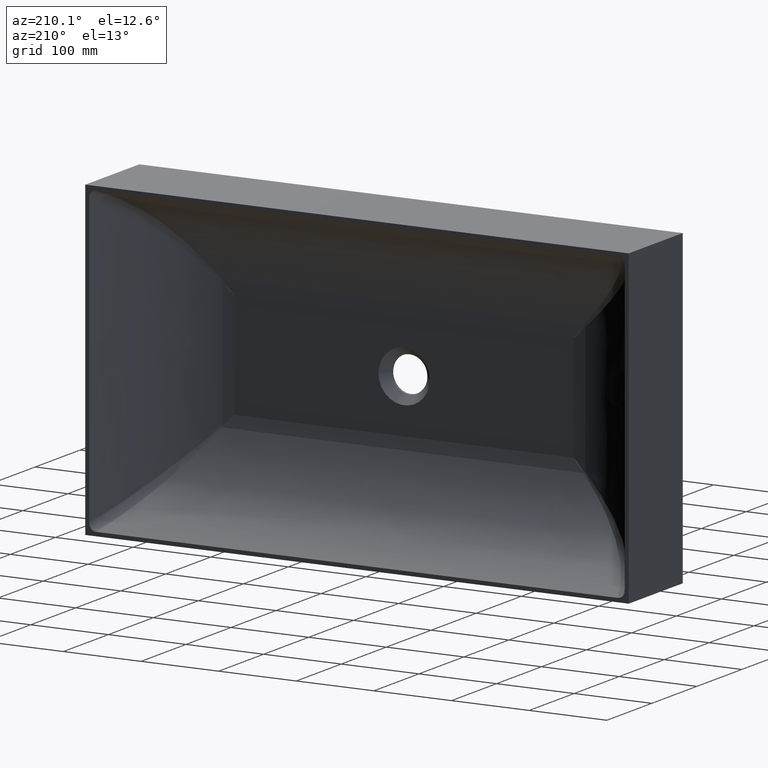
[diagram: clean part render]
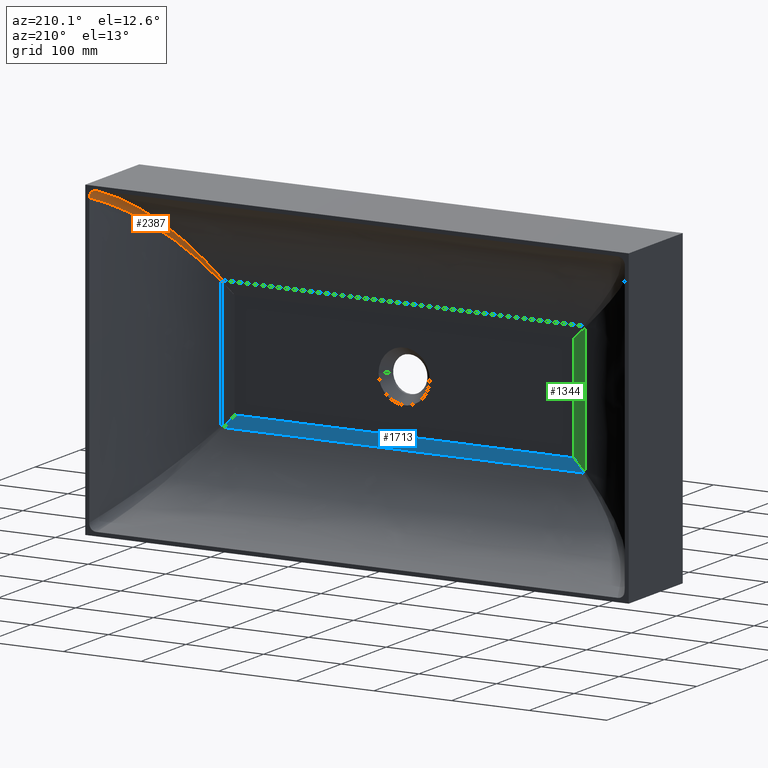
[diagram: same view with three faces highlighted in distinct colors, each labeled with its STEP entity id]
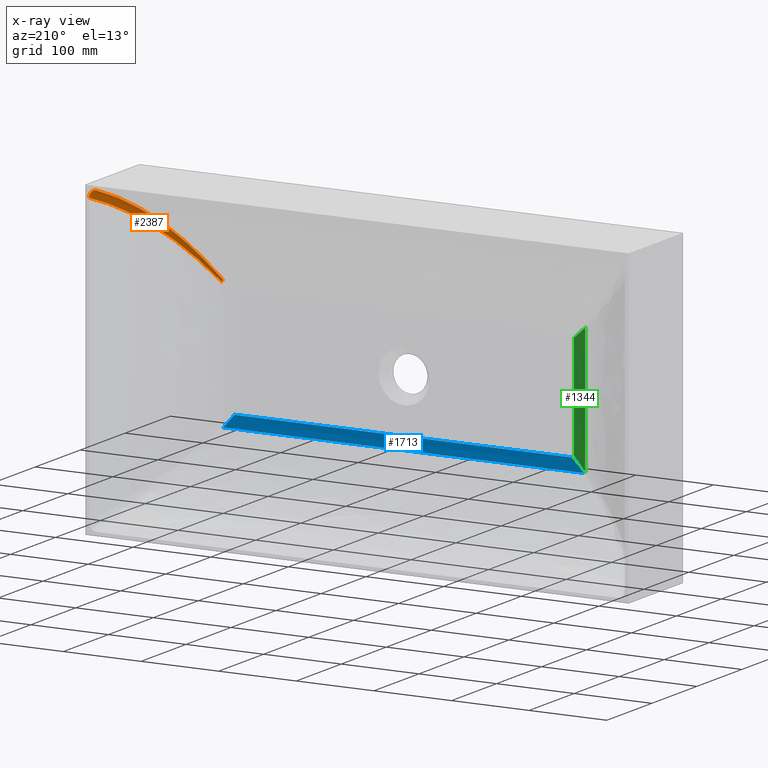
[diagram: x-ray of the same camera — body ghosted, the three highlighted faces saturated]
A machine part, auxiliary view with three faces highlighted in distinct colors.
The next image is the same camera in x-ray (body ghosted, the three faces saturated) — at least one of them is partly hidden behind the body in this view.
Their STEP definitions:

[orange] entity #2387 — the highlighted face is a freeform B-spline surface patch.
#8 = CARTESIAN_POINT ( 'NONE',  ( 353.0602696709266300, 141.7622681004688700, 193.5869380424701900 ) ) ;
#10 = CARTESIAN_POINT ( 'NONE',  ( 343.8305096038049000, 119.9999999999992300, 190.3507536799460500 ) ) ;
#28 = CARTESIAN_POINT ( 'NONE',  ( 342.1161437868125300, 130.6808307374063800, 198.9290039651106100 ) ) ;
#40 = CARTESIAN_POINT ( 'NONE',  ( 250.0343537847129500, 20.60783860996045300, 100.0343537847179200 ) ) ;
#51 = CARTESIAN_POINT ( 'NONE',  ( 325.2370760181441900, 89.87206253460696800, 181.5586877097761100 ) ) ;
#53 = CARTESIAN_POINT ( 'NONE',  ( 335.5790577006914100, 119.9922663913401900, 194.9671193596227600 ) ) ;
#68 = CARTESIAN_POINT ( 'NONE',  ( 332.0495297996490600, 90.78000515710516500, 173.0959708676973600 ) ) ;
#74 = CARTESIAN_POINT ( 'NONE',  ( 250.9033306299957600, 21.03574322294233000, 97.83123642995305100 ) ) ;
#76 = CARTESIAN_POINT ( 'NONE',  ( 348.9290039651144800, 130.6808307374057300, 192.1161437868086400 ) ) ;
#81 = CARTESIAN_POINT ( 'NONE',  ( 335.5790577006914100, 119.9922663913401900, 194.9671193596227600 ) ) ;
#90 = CARTESIAN_POINT ( 'NONE',  ( 349.2127276877550300, 131.4418727242324700, 189.7910507337439300 ) ) ;
#97 = CARTESIAN_POINT ( 'NONE',  ( 310.9484262328141400, 70.68993126215488600, 169.1056830129724600 ) ) ;
#107 = CARTESIAN_POINT ( 'NONE',  ( 248.4283020120301400, 20.91654091057412000, 101.5527193509822000 ) ) ;
#118 = CARTESIAN_POINT ( 'NONE',  ( 312.5340092661215300, 62.49227608011109700, 154.8059060091606500 ) ) ;
#134 = EDGE_CURVE ( 'NONE', #3217, #1709, #3107, .T. ) ;
#137 = CARTESIAN_POINT ( 'NONE',  ( 248.4070297213918400, 20.92262786160289100, 101.5722593127979000 ) ) ;
#152 = CARTESIAN_POINT ( 'NONE',  ( 311.0179546172755600, 70.65659691289489800, 169.0811680669721700 ) ) ;
#154 = CARTESIAN_POINT ( 'NONE',  ( 344.9834004611630000, 119.9999999999991800, 186.2025042077122000 ) ) ;
#156 = CARTESIAN_POINT ( 'NONE',  ( 325.3278563890909300, 80.00030963983474000, 166.8982096558467300 ) ) ;
#157 = CARTESIAN_POINT ( 'NONE',  ( 268.5662026858608400, 27.77611558960594400, 114.1839844905518900 ) ) ;
#167 = CARTESIAN_POINT ( 'NONE',  ( 344.9671193596302000, 119.9922663913387000, 185.5790577006874900 ) ) ;
#168 = CARTESIAN_POINT ( 'NONE',  ( 327.2722296423069100, 99.64894552346491700, 186.2698783149439000 ) ) ;
#173 = CARTESIAN_POINT ( 'NONE',  ( 264.1995825273717200, 27.77007580864219300, 118.5533923378958600 ) ) ;
#182 = CARTESIAN_POINT ( 'NONE',  ( 251.5725524122220800, 20.92271916586846500, 98.40671063702721700 ) ) ;
#192 = CARTESIAN_POINT ( 'NONE',  ( 349.2183454285875500, 131.4569413854105700, 189.7450138001310900 ) ) ;
#204 = CARTESIAN_POINT ( 'NONE',  ( 325.6734303528584200, 80.54423643691654900, 167.2242178301665900 ) ) ;
#207 = CARTESIAN_POINT ( 'NONE',  ( 302.3301987935749400, 59.48875171410329400, 159.9232516844786300 ) ) ;
#212 = CARTESIAN_POINT ( 'NONE',  ( 274.4981867648909900, 31.27210128183988800, 124.4981867648835600 ) ) ;
#228 = CARTESIAN_POINT ( 'NONE',  ( 331.5586877097800300, 89.87206253460705300, 175.2370760181403300 ) ) ;
#241 = CARTESIAN_POINT ( 'NONE',  ( 344.9671193596302000, 119.9922663913387000, 185.5790577006874900 ) ) ;
#257 = CARTESIAN_POINT ( 'NONE',  ( 297.2999067807205100, 53.75134535489850400, 154.5096558310579000 ) ) ;
#267 = CARTESIAN_POINT ( 'NONE',  ( 259.1934130581681800, 25.51750841957950300, 113.1494399535249500 ) ) ;
#280 = CARTESIAN_POINT ( 'NONE',  ( 276.8207918744032000, 32.08909666633343200, 121.7318006046710400 ) ) ;
#292 = CARTESIAN_POINT ( 'NONE',  ( 340.6302678640722100, 119.9999999999992600, 193.6523266788829000 ) ) ;
#330 = CARTESIAN_POINT ( 'NONE',  ( 344.9309921341780400, 119.9999999999991800, 186.8191311858080900 ) ) ;
#333 = CARTESIAN_POINT ( 'NONE',  ( 336.0705513171184900, 99.23907935259258300, 177.0823101136958000 ) ) ;
#344 = CARTESIAN_POINT ( 'NONE',  ( 315.0272239983765400, 65.54044794139423400, 157.2258651565963700 ) ) ;
#355 = CARTESIAN_POINT ( 'NONE',  ( 268.5918233817936900, 27.78819515153306000, 114.1527884169093500 ) ) ;
#369 = CARTESIAN_POINT ( 'NONE',  ( 322.9012043825587700, 76.08005193490483000, 164.5125752392147000 ) ) ;
#391 = CARTESIAN_POINT ( 'NONE',  ( 298.3585497162895300, 48.02213761363248800, 141.7229148768800800 ) ) ;
#394 = CARTESIAN_POINT ( 'NONE',  ( 312.5070507562330700, 62.46041497307188500, 154.8704063234804900 ) ) ;
#402 = CARTESIAN_POINT ( 'NONE',  ( 294.2802595137585500, 44.36860728930572200, 137.8683622605549900 ) ) ;
#425 = CARTESIAN_POINT ( 'NONE',  ( 344.1085731110769600, 119.9999999999992000, 189.8004443946797200 ) ) ;
#435 = CARTESIAN_POINT ( 'NONE',  ( 297.2729684234220100, 47.06520296402503300, 140.7176805349687100 ) ) ;
#439 = CARTESIAN_POINT ( 'NONE',  ( 328.4482755062239200, 102.2283796903017500, 187.5033164088408500 ) ) ;
#454 = CARTESIAN_POINT ( 'NONE',  ( 339.8028767345654700, 119.9999999999992600, 194.0906595401324900 ) ) ;
#466 = CARTESIAN_POINT ( 'NONE',  ( 294.2951501129193700, 44.38073759925996600, 137.8436865307523900 ) ) ;
#473 = CARTESIAN_POINT ( 'NONE',  ( 294.7689473903487900, 51.00562533716112800, 151.6910932429844600 ) ) ;
#483 = CARTESIAN_POINT ( 'NONE',  ( 353.0490341892615900, 141.7321307781126900, 193.6790119096958200 ) ) ;
#485 = CARTESIAN_POINT ( 'NONE',  ( 263.6618703320866100, 27.83141726354947600, 117.9835833059262900 ) ) ;
#487 = CARTESIAN_POINT ( 'NONE',  ( 327.8569277099741200, 100.9223965141017800, 186.8832995026013500 ) ) ;
#494 = CARTESIAN_POINT ( 'NONE',  ( 238.2607265738751000, 17.98234739744149000, 90.62296586599831000 ) ) ;
#495 = CARTESIAN_POINT ( 'NONE',  ( 318.4682944169665600, 69.82323818139508400, 162.7561642288401900 ) ) ;
#500 = CARTESIAN_POINT ( 'NONE',  ( 288.4668329210251700, 44.82839929447220600, 144.8443966633425600 ) ) ;
#501 = CARTESIAN_POINT ( 'NONE',  ( 240.2489158663030400, 18.40767052215013100, 92.76158158672842500 ) ) ;
#510 = CARTESIAN_POINT ( 'NONE',  ( 243.8657254362464100, 18.95255446683666600, 91.27778303686294200 ) ) ;
#512 = CARTESIAN_POINT ( 'NONE',  ( 323.1375574848023000, 90.76237021648323400, 182.0399961893759300 ) ) ;
#524 = CARTESIAN_POINT ( 'NONE',  ( 349.2239631694200700, 131.4720100465887100, 189.6989768665182500 ) ) ;
#527 = CARTESIAN_POINT ( 'NONE',  ( 286.9360677736132200, 39.55170947194351800, 136.9360677736093500 ) ) ;
#539 = CARTESIAN_POINT ( 'NONE',  ( 311.8397609074659200, 61.67177370972500200, 156.4669487571031000 ) ) ;
#540 = CARTESIAN_POINT ( 'NONE',  ( 336.2174920207497700, 99.54104083523361600, 177.2223128689850600 ) ) ;
#548 = CARTESIAN_POINT ( 'NONE',  ( 271.7865791508256200, 32.06541419254831700, 126.7788952766526500 ) ) ;
#549 = CARTESIAN_POINT ( 'NONE',  ( 329.1875217988920800, 86.26269242645862800, 170.5441249917637400 ) ) ;
#571 = CARTESIAN_POINT ( 'NONE',  ( 336.2542330081761300, 99.61670581016403500, 177.2573216497604800 ) ) ;
#573 = CARTESIAN_POINT ( 'NONE',  ( 248.4389381573493000, 20.91349743505973500, 101.5429493700743500 ) ) ;
#586 = CARTESIAN_POINT ( 'NONE',  ( 304.8384754748099100, 62.47618779833897000, 162.5203965532069200 ) ) ;
#587 = CARTESIAN_POINT ( 'NONE',  ( 251.0409937994024900, 21.08025529773051000, 97.95924319572633000 ) ) ;
#599 = CARTESIAN_POINT ( 'NONE',  ( 339.7459254225800600, 131.4566429960812900, 199.2182341861905600 ) ) ;
#606 = CARTESIAN_POINT ( 'NONE',  ( 308.4055245994332500, 57.66192646622510400, 151.0443129937892200 ) ) ;
#615 = CARTESIAN_POINT ( 'NONE',  ( 339.5199562967101800, 119.9999999999993000, 194.2169340502024400 ) ) ;
#624 = CARTESIAN_POINT ( 'NONE',  ( 325.7309740156360900, 80.63517527262331400, 167.2785128845413000 ) ) ;
#634 = CARTESIAN_POINT ( 'NONE',  ( 240.2404406670299900, 18.40962985201578700, 92.76959450748023500 ) ) ;
#660 = CARTESIAN_POINT ( 'NONE',  ( 245.2971886375856300, 19.34324307730628300, 92.61247034111470100 ) ) ;
#672 = CARTESIAN_POINT ( 'NONE',  ( 299.4200513471818100, 48.97515624007850500, 142.7062124915954100 ) ) ;
#693 = CARTESIAN_POINT ( 'NONE',  ( 327.2742257637953600, 99.65326337320098600, 186.2719731383770400 ) ) ;
#698 = CARTESIAN_POINT ( 'NONE',  ( 234.0551380440470000, 16.67727987823717900, 82.09314162299818900 ) ) ;
#705 = CARTESIAN_POINT ( 'NONE',  ( 312.5474885210657000, 62.50820663363069900, 154.7736558520007600 ) ) ;
#715 = CARTESIAN_POINT ( 'NONE',  ( 267.9192166959598500, 27.47107675104060200, 114.9717625680590800 ) ) ;
#720 = CARTESIAN_POINT ( 'NONE',  ( 327.8046284079305800, 100.4335844309977000, 186.9415343503941900 ) ) ;
#723 = CARTESIAN_POINT ( 'NONE',  ( 343.3307884736333900, 119.9999999999992600, 191.1303594508670800 ) ) ;
#727 = CARTESIAN_POINT ( 'NONE',  ( 294.7415523539493700, 51.01932112352042700, 151.7055641153941700 ) ) ;
#730 = CARTESIAN_POINT ( 'NONE',  ( 250.4482419209678300, 20.88946625194105500, 97.40802924344670500 ) ) ;
#732 = CARTESIAN_POINT ( 'NONE',  ( 332.0401813080255800, 90.76271264251487000, 173.1367499776723700 ) ) ;
#740 = CARTESIAN_POINT ( 'NONE',  ( 341.8928297116551100, 112.1416121911543400, 182.6459281754226300 ) ) ;
#743 = CARTESIAN_POINT ( 'NONE',  ( 293.5133199410966500, 43.74383627562311700, 139.1392845024910200 ) ) ;
#747 = CARTESIAN_POINT ( 'NONE',  ( 317.6912895954710100, 81.32983310398869000, 176.1683561946488800 ) ) ;
#752 = CARTESIAN_POINT ( 'NONE',  ( 336.2594819107786200, 99.62752091818828100, 177.2623231705220800 ) ) ;
#757 = CARTESIAN_POINT ( 'NONE',  ( 283.4975798682837100, 40.68387441259098100, 139.5436517778918500 ) ) ;
#764 = CARTESIAN_POINT ( 'NONE',  ( 345.6054602154754300, 121.0186924895546800, 186.2028776134323500 ) ) ;
#765 = CARTESIAN_POINT ( 'NONE',  ( 338.0514613429174300, 119.9999999999992000, 194.7080779215379200 ) ) ;
#775 = CARTESIAN_POINT ( 'NONE',  ( 343.0678936472997400, 119.4224443233173400, 193.0678936472904800 ) ) ;
#822 = CARTESIAN_POINT ( 'NONE',  ( 251.5626847315051000, 20.91964525559893300, 98.41745314380112600 ) ) ;
#831 = CARTESIAN_POINT ( 'NONE',  ( 338.4955341513116300, 120.2727380188056400, 195.3359427782235100 ) ) ;
#834 = CARTESIAN_POINT ( 'NONE',  ( 289.5143241207396200, 40.66218020419183400, 133.5428323977474500 ) ) ;
#839 = CARTESIAN_POINT ( 'NONE',  ( 271.7323429665192400, 32.08886218639485600, 126.8203770566049800 ) ) ;
#852 = CARTESIAN_POINT ( 'NONE',  ( 341.4138619760110500, 119.9999999999992900, 193.1469754037655900 ) ) ;
#855 = CARTESIAN_POINT ( 'NONE',  ( 338.6496034770298700, 119.9999999999992000, 194.5395765993933100 ) ) ;
#866 = CARTESIAN_POINT ( 'NONE',  ( 247.4580170645776900, 19.96930538973386900, 94.62531312230679200 ) ) ;
#871 = CARTESIAN_POINT ( 'NONE',  ( 317.4223765345762400, 80.87661891696782800, 175.8834316352011100 ) ) ;
#882 = CARTESIAN_POINT ( 'NONE',  ( 322.3058243684775400, 75.19741989400813500, 166.4073751446775300 ) ) ;
#889 = CARTESIAN_POINT ( 'NONE',  ( 289.1392845024896000, 43.74383627562377100, 143.5133199410962800 ) ) ;
#891 = CARTESIAN_POINT ( 'NONE',  ( 343.5878496649209500, 141.7619697111395900, 203.0601584285314200 ) ) ;
#902 = CARTESIAN_POINT ( 'NONE',  ( 317.3775828976903900, 80.80136676138845100, 175.8359642794414400 ) ) ;
#917 = CARTESIAN_POINT ( 'NONE',  ( 319.1183082101662800, 70.70709845202351600, 160.9126191148142500 ) ) ;
#920 = CARTESIAN_POINT ( 'NONE',  ( 336.8233690138111500, 119.9999999999992800, 194.9305504224677700 ) ) ;
#923 = CARTESIAN_POINT ( 'NONE',  ( 336.2651943774217200, 99.63929241881794500, 177.2677664269164100 ) ) ;
#926 = CARTESIAN_POINT ( 'NONE',  ( 303.9631002841254000, 58.67611325758650100, 159.1967278732884100 ) ) ;
#938 = CARTESIAN_POINT ( 'NONE',  ( 325.7802852938921200, 80.71318749832273900, 167.3250424542447400 ) ) ;
#939 = CARTESIAN_POINT ( 'NONE',  ( 294.7141573175500200, 51.03301690987974100, 151.7200349878038400 ) ) ;
#944 = B_SPLINE_CURVE_WITH_KNOTS ( 'NONE', 3,
 ( #1509, #2487, #1151, #510, #660, #866, #2950, #2405, #730, #2571, #74, #1167, #587, #3206, #3144, #1517, #1296, #1989, #1006, #1858, #1722, #435, #391, #2496, #1047, #2374, #2865, #2413, #672, #2314, #2847, #606, #344, #2831, #1244, #1318, #1271, #2855, #1920, #156, #1433, #204, #624, #2686, #1914, #938, #2867, #2208, #549, #3076, #1136, #2169, #1445, #2154, #2109, #333, #3092, #540, #2065, #571, #752, #2004, #923, #1976, #2624, #740, #2697, #241 ),
 .UNSPECIFIED., .F., .F.,
 ( 4, 2, 2, 1, 1, 1, 1, 2, 2, 2, 2, 2, 1, 1, 1, 1, 1, 1, 1, 2, 2, 2, 2, 2, 1, 1, 1, 1, 1, 1, 1, 2, 2, 2, 2, 1, 1, 1, 1, 1, 1, 1, 1, 2, 2, 2, 4 ),
 ( 0.0000000000000000000, 0.06249999999992852900, 0.09374999999989262800, 0.1093749999998749100, 0.1171874999998660400, 0.1210937499998611500, 0.1230468749998586400, 0.1240234374998573800, 0.1249999999998561300, 0.2499999999997195000, 0.3749999999995828900, 0.4374999999995145500, 0.4687499999994804700, 0.4843749999994632600, 0.4921874999994543800, 0.4960937499994499400, 0.4980468749994480000, 0.4990234374994471600, 0.4995117187494468300, 0.4997558593744465500, 0.4999999999994462200, 0.6249999999993153300, 0.6874999999992499300, 0.7187499999992169600, 0.7343749999992004200, 0.7421874999991919800, 0.7460937499991879800, 0.7480468749991859800, 0.7490234374991852100, 0.7495117187491845400, 0.7497558593741845400, 0.7498779296866841000, 0.7499999999991837600, 0.8124999999989770400, 0.8437499999988739000, 0.8593749999988222800, 0.8671874999987965200, 0.8710937499987835300, 0.8730468749987768700, 0.8740234374987736500, 0.8745117187487720900, 0.8747558593737713200, 0.8748779296862710900, 0.8749389648425210900, 0.8749999999987712100, 0.9374999999993856000, 1.000000000000000000 ),
 .UNSPECIFIED. ) ;
#950 = CARTESIAN_POINT ( 'NONE',  ( 344.5449928658162000, 119.9999999999992500, 188.6324253924279900 ) ) ;
#967 = CARTESIAN_POINT ( 'NONE',  ( 337.7457426899624100, 119.9999999999991800, 194.7785771650070500 ) ) ;
#972 = CARTESIAN_POINT ( 'NONE',  ( 334.1702269521768500, 116.0764994845922500, 193.4817137810219400 ) ) ;
#974 = CARTESIAN_POINT ( 'NONE',  ( 309.8959727715691200, 59.45823943998190900, 152.3915096231220900 ) ) ;
#988 = CARTESIAN_POINT ( 'NONE',  ( 319.3878477761212500, 84.25653321627410700, 177.9641380552614900 ) ) ;
#1006 = CARTESIAN_POINT ( 'NONE',  ( 289.3647519499366500, 40.66841831954057800, 133.4049853951326000 ) ) ;
#1015 = CARTESIAN_POINT ( 'NONE',  ( 233.7322390886600100, 16.61311788281267000, 82.42878995895347300 ) ) ;
#1030 = CARTESIAN_POINT ( 'NONE',  ( 268.5533923378944200, 27.77007580864238900, 114.1995825273731700 ) ) ;
#1036 = ORIENTED_EDGE ( 'NONE', *, *, #2601, .T. ) ;
#1046 = CARTESIAN_POINT ( 'NONE',  ( 301.6647569351356400, 52.22870246850929000, 151.6647569351334800 ) ) ;
#1047 = CARTESIAN_POINT ( 'NONE',  ( 299.1695727605243200, 48.74871618898296800, 142.4741542249763300 ) ) ;
#1048 = CARTESIAN_POINT ( 'NONE',  ( 345.9580680291516000, 140.9861574524647100, 202.7709282074514500 ) ) ;
#1052 = CARTESIAN_POINT ( 'NONE',  ( 336.2034410251453700, 119.9999999999993200, 194.9834016919664900 ) ) ;
#1062 = EDGE_CURVE ( 'NONE', #2933, #2807, #944, .T. ) ;
#1068 = CARTESIAN_POINT ( 'NONE',  ( 317.5119855467161800, 81.02736604320938300, 175.9783836889033100 ) ) ;
#1070 = CARTESIAN_POINT ( 'NONE',  ( 268.5790130338272700, 27.78215537056950200, 114.1683864537306200 ) ) ;
#1073 = CARTESIAN_POINT ( 'NONE',  ( 263.6286830689073800, 27.81422457026816300, 117.9476799588762500 ) ) ;
#1079 = CARTESIAN_POINT ( 'NONE',  ( 289.5439450544668000, 40.68409135467504700, 133.4971273429879100 ) ) ;
#1092 = CARTESIAN_POINT ( 'NONE',  ( 251.0544503246503600, 20.76132365934055800, 98.97074542334216600 ) ) ;
#1094 = CARTESIAN_POINT ( 'NONE',  ( 342.7596473689034700, 119.9999999999991900, 191.8703264448059000 ) ) ;
#1121 = CARTESIAN_POINT ( 'NONE',  ( 353.0658874117591500, 141.7773367616470100, 193.5409011088573500 ) ) ;
#1136 = CARTESIAN_POINT ( 'NONE',  ( 332.7000950271931900, 92.61268540303089500, 173.8758890133582300 ) ) ;
#1147 = CARTESIAN_POINT ( 'NONE',  ( 276.7928608092376000, 32.07330835047676500, 121.7683196354393300 ) ) ;
#1151 = CARTESIAN_POINT ( 'NONE',  ( 239.6020348759439000, 17.85507302626822900, 87.29846343851515700 ) ) ;
#1154 = CARTESIAN_POINT ( 'NONE',  ( 276.8068263418204000, 32.08120250840509900, 121.7500601200551800 ) ) ;
#1159 = CARTESIAN_POINT ( 'NONE',  ( 234.0487446320693700, 16.67600946821205100, 82.09978747320967300 ) ) ;
#1163 = CARTESIAN_POINT ( 'NONE',  ( 314.5133037282228100, 76.07971259155948500, 172.9009754782815400 ) ) ;
#1164 = CARTESIAN_POINT ( 'NONE',  ( 327.5625226311322500, 100.2789961956197300, 186.5744792063037800 ) ) ;
#1167 = CARTESIAN_POINT ( 'NONE',  ( 250.9943966256011800, 21.06517100602642500, 97.91591540557605800 ) ) ;
#1168 = CARTESIAN_POINT ( 'NONE',  ( 319.1059281624362100, 70.69026460564721500, 160.9477309489673200 ) ) ;
#1180 = CARTESIAN_POINT ( 'NONE',  ( 327.8895012960969700, 100.4003681327601200, 186.9258251362193700 ) ) ;
#1189 = CARTESIAN_POINT ( 'NONE',  ( 345.3359427782274300, 120.2727380188057100, 188.4955341513059500 ) ) ;
#1196 = CARTESIAN_POINT ( 'NONE',  ( 264.1841389265575800, 27.77605578979423100, 118.5660758507349800 ) ) ;
#1233 = B_SPLINE_SURFACE_WITH_KNOTS ( 'NONE', 3, 3, ( 
 ( #2990, #1802, #698, #1159, #3186, #1488, #1377, #1842, #2042, #1516, #2809 ),
 ( #1253, #3170, #2275, #1922, #2377, #2027, #3149, #2894, #501, #634, #2595 ),
 ( #182, #822, #3087, #2391, #1092, #40, #2038, #573, #107, #3320, #137 ),
 ( #355, #1070, #157, #1030, #715, #2437, #2556, #173, #1196, #2043, #1267 ),
 ( #280, #1154, #1147, #2959, #2143, #212, #2537, #548, #1348, #3231, #839 ),
 ( #2518, #1079, #3047, #834, #2602, #527, #3164, #3058, #3061, #757, #2397 ),
 ( #466, #402, #3034, #2611, #743, #2780, #889, #2607, #2166, #2163, #2876 ),
 ( #2565, #1780, #3304, #1240, #1518, #2646, #1531, #1463, #473, #727, #939 ),
 ( #3264, #3044, #1718, #1602, #1350, #1046, #1537, #2752, #1983, #2793, #257 ),
 ( #1859, #2262, #974, #2466, #2119, #1895, #926, #2457, #1387, #3000, #207 ),
 ( #705, #118, #1476, #394, #539, #2115, #1834, #1414, #586, #2919, #1355 ),
 ( #917, #1168, #3026, #2267, #495, #2543, #2902, #152, #1641, #97, #2106 ),
 ( #2713, #369, #2331, #1960, #882, #1612, #2090, #2326, #2971, #1163, #2344 ),
 ( #68, #732, #1827, #2341, #228, #1797, #51, #2214, #2945, #512, #1429 ),
 ( #1748, #2654, #2352, #1652, #2727, #2368, #1378, #1180, #2823, #720, #1512 ),
 ( #2979, #2844, #3287, #764, #1189, #775, #831, #1279, #1916, #1407, #3120 ),
 ( #524, #192, #90, #2706, #76, #1261, #28, #2080, #1574, #599, #1950 ),
 ( #1121, #8, #2836, #483, #1740, #1408, #1048, #3075, #2798, #891, #2164 ) ),
 .UNSPECIFIED., .F., .F., .F.,
 ( 4, 2, 2, 2, 2, 2, 2, 2, 4 ),
 ( 4, 3, 1, 3, 4 ),
 ( 0.0000000000000000000, 3.494974538171469600, 6.884040757004410000, 9.002207143774997500, 10.32606113550661500, 11.64991512723823200, 13.76808151400882000, 17.15714773284176100, 20.65212227101323000 ),
 ( -0.01010000000000000000, 0.0000000000000000000, 0.5000000000000000000, 1.000000000000000000, 1.010000000000000000 ),
 .UNSPECIFIED. ) ;
#1236 = B_SPLINE_CURVE_WITH_KNOTS ( 'NONE', 3,
 ( #167, #1998, #154, #330, #2229, #1588, #2587, #950, #2048, #425, #10, #723, #1764, #1094, #2411, #2210, #852, #292, #2249, #454, #615, #2069, #855, #765, #967, #2574, #920, #1052, #1245, #81 ),
 .UNSPECIFIED., .F., .F.,
 ( 4, 2, 2, 2, 2, 2, 2, 2, 2, 2, 2, 2, 2, 2, 4 ),
 ( 0.0000000000000000000, 0.0009257488335290810400, 0.001851497667058162100, 0.002777246500587243200, 0.003702995334116324200, 0.005554493001174426600, 0.006480241834703521900, 0.007405990668232618000, 0.009257488335290869200, 0.01018323716881994700, 0.01110898600234902500, 0.01203473483587810300, 0.01296048366940718100, 0.01388623250293625900, 0.01481198133646533700 ),
 .UNSPECIFIED. ) ;
#1240 = CARTESIAN_POINT ( 'NONE',  ( 301.6766223705733400, 50.99192955080079800, 144.7963424267495600 ) ) ;
#1244 = CARTESIAN_POINT ( 'NONE',  ( 320.4640568899425300, 72.77428532752121300, 162.3208371293068500 ) ) ;
#1245 = CARTESIAN_POINT ( 'NONE',  ( 335.8917551118458400, 119.9999999999992500, 194.9931776697872300 ) ) ;
#1253 = CARTESIAN_POINT ( 'NONE',  ( 242.7778478158533100, 18.41164796177711300, 90.23171121177497900 ) ) ;
#1261 = CARTESIAN_POINT ( 'NONE',  ( 346.6615061627340400, 129.8316210647923000, 196.6615061627337000 ) ) ;
#1267 = CARTESIAN_POINT ( 'NONE',  ( 264.1532517249291900, 27.78801575209830700, 118.5914428764132100 ) ) ;
#1271 = CARTESIAN_POINT ( 'NONE',  ( 323.1420408460141400, 76.65774928749111400, 164.8386678554301200 ) ) ;
#1279 = CARTESIAN_POINT ( 'NONE',  ( 336.2028776134398000, 121.0186924895545800, 195.6054602154679900 ) ) ;
#1296 = CARTESIAN_POINT ( 'NONE',  ( 278.8861173988846600, 33.52270297569116100, 123.7306541680426100 ) ) ;
#1318 = CARTESIAN_POINT ( 'NONE',  ( 321.5398051597906000, 74.30020053742802600, 163.3313748491056000 ) ) ;
#1322 = CARTESIAN_POINT ( 'NONE',  ( 233.0867929098925500, 16.54992520015479600, 83.08679290988713700 ) ) ;
#1348 = CARTESIAN_POINT ( 'NONE',  ( 271.7685004227234900, 32.07323019049717100, 126.7927225366367600 ) ) ;
#1350 = CARTESIAN_POINT ( 'NONE',  ( 303.7533075884475700, 52.99375799710059500, 148.8126027973368700 ) ) ;
#1355 = CARTESIAN_POINT ( 'NONE',  ( 304.7746137774645400, 62.50773344887284800, 162.5470881471588900 ) ) ;
#1377 = CARTESIAN_POINT ( 'NONE',  ( 232.4287899589379000, 16.61311788280962200, 83.73223908864169100 ) ) ;
#1378 = CARTESIAN_POINT ( 'NONE',  ( 330.0113235002992800, 99.56996067682111100, 186.5330947818613100 ) ) ;
#1387 = CARTESIAN_POINT ( 'NONE',  ( 302.3918177177460500, 59.45808611197058700, 159.8958356916035900 ) ) ;
#1401 = CARTESIAN_POINT ( 'NONE',  ( 270.3157150761026100, 31.54771247591815000, 125.1860328598328500 ) ) ;
#1407 = CARTESIAN_POINT ( 'NONE',  ( 336.1111713519253500, 121.0485306683845400, 195.6162409129582600 ) ) ;
#1408 = CARTESIAN_POINT ( 'NONE',  ( 350.5034304050749400, 140.1369477798506000, 200.5034304050745700 ) ) ;
#1414 = CARTESIAN_POINT ( 'NONE',  ( 304.8704063234826000, 62.46041497307203400, 162.5070507562309700 ) ) ;
#1415 = CARTESIAN_POINT ( 'NONE',  ( 292.8593756875519000, 49.12511172554843600, 149.5853600473346300 ) ) ;
#1429 = CARTESIAN_POINT ( 'NONE',  ( 323.0971821283912400, 90.77949151805778200, 182.0492521216756600 ) ) ;
#1430 = CARTESIAN_POINT ( 'NONE',  ( 328.9592370394015000, 103.3811042475193900, 188.0385660676075200 ) ) ;
#1433 = CARTESIAN_POINT ( 'NONE',  ( 325.5582983507742900, 80.36260268140597400, 167.1155936506098400 ) ) ;
#1445 = CARTESIAN_POINT ( 'NONE',  ( 334.7011703899746100, 96.47422492253593900, 175.7783692295782000 ) ) ;
#1463 = CARTESIAN_POINT ( 'NONE',  ( 294.7963424267481400, 50.99192955080181400, 151.6766223705747600 ) ) ;
#1476 = CARTESIAN_POINT ( 'NONE',  ( 312.5205300111773000, 62.47634552659148700, 154.8381561663205700 ) ) ;
#1482 = CARTESIAN_POINT ( 'NONE',  ( 283.9354560105948100, 40.95464305849713300, 139.9389244733185900 ) ) ;
#1485 = CARTESIAN_POINT ( 'NONE',  ( 254.3909770184978900, 23.38846040987906200, 107.9618733095112500 ) ) ;
#1488 = CARTESIAN_POINT ( 'NONE',  ( 233.0867929098765500, 16.54992520015160900, 83.08679290987086600 ) ) ;
#1509 = CARTESIAN_POINT ( 'NONE',  ( 234.0487446320693700, 16.67600946821178100, 82.09978747320967300 ) ) ;
#1512 = CARTESIAN_POINT ( 'NONE',  ( 327.7621919638473900, 100.4501925801164800, 186.9493889574815700 ) ) ;
#1516 = CARTESIAN_POINT ( 'NONE',  ( 232.0866273737820500, 16.67852513162838000, 84.06140485380575500 ) ) ;
#1517 = CARTESIAN_POINT ( 'NONE',  ( 273.4770390148722800, 30.46089673187241300, 118.7397646368576700 ) ) ;
#1518 = CARTESIAN_POINT ( 'NONE',  ( 300.9530787500853500, 50.30714023283565700, 146.1660942466824600 ) ) ;
#1531 = CARTESIAN_POINT ( 'NONE',  ( 296.1660942466810400, 50.30714023283635300, 150.9530787500867700 ) ) ;
#1537 = CARTESIAN_POINT ( 'NONE',  ( 298.8126027973372600, 52.99375799710004700, 153.7533075884471700 ) ) ;
#1569 = CARTESIAN_POINT ( 'NONE',  ( 317.3455919322787500, 80.74766504321405600, 175.8020626131768200 ) ) ;
#1574 = CARTESIAN_POINT ( 'NONE',  ( 339.7915065449694800, 131.4417235295682900, 199.2126720665545700 ) ) ;
#1588 = CARTESIAN_POINT ( 'NONE',  ( 344.7812516531241200, 119.9999999999992500, 187.7326965091354800 ) ) ;
#1594 = EDGE_CURVE ( 'NONE', #2807, #3217, #1236, .T. ) ;
#1596 = FACE_OUTER_BOUND ( 'NONE', #2220, .T. ) ;
#1602 = CARTESIAN_POINT ( 'NONE',  ( 304.4668436663809000, 53.70846305162767500, 147.3855310835450000 ) ) ;
#1612 = CARTESIAN_POINT ( 'NONE',  ( 320.0444236923871700, 74.26253948914524000, 170.0444236923832500 ) ) ;
#1641 = CARTESIAN_POINT ( 'NONE',  ( 310.9831904250448800, 70.67326408752489900, 169.0934255399732000 ) ) ;
#1652 = CARTESIAN_POINT ( 'NONE',  ( 336.9258251362250600, 100.4003681327600400, 177.8895012960912800 ) ) ;
#1661 = CARTESIAN_POINT ( 'NONE',  ( 327.4156466616815900, 99.95967840393532800, 186.4203757825616800 ) ) ;
#1671 = CARTESIAN_POINT ( 'NONE',  ( 296.4927057450335000, 52.80678250999118700, 153.5034922761866500 ) ) ;
#1684 = CARTESIAN_POINT ( 'NONE',  ( 232.4287899589536700, 16.61311788281284400, 83.73223908865809100 ) ) ;
#1709 = VERTEX_POINT ( 'NONE', #2260 ) ;
#1718 = CARTESIAN_POINT ( 'NONE',  ( 304.4812570951549400, 53.72290009372911600, 147.3567042349266400 ) ) ;
#1722 = CARTESIAN_POINT ( 'NONE',  ( 295.0874965042496000, 45.19167803680971200, 138.6950111228921400 ) ) ;
#1730 = CARTESIAN_POINT ( 'NONE',  ( 294.6136897588957600, 50.87274885486559100, 151.4779893077123300 ) ) ;
#1740 = CARTESIAN_POINT ( 'NONE',  ( 352.7709282074536100, 140.9861574524640000, 195.9580680291495000 ) ) ;
#1748 = CARTESIAN_POINT ( 'NONE',  ( 336.9496245957002400, 100.4506908245899400, 177.7609188705149300 ) ) ;
#1764 = CARTESIAN_POINT ( 'NONE',  ( 343.1503344193469600, 119.9999999999992200, 191.3825243158123300 ) ) ;
#1780 = CARTESIAN_POINT ( 'NONE',  ( 301.7058535328427500, 51.01959503924659600, 144.7410044532251200 ) ) ;
#1785 = ORIENTED_EDGE ( 'NONE', *, *, #134, .F. ) ;
#1797 = CARTESIAN_POINT ( 'NONE',  ( 329.2666280514175700, 88.91516133019618500, 179.2666280514154700 ) ) ;
#1802 = CARTESIAN_POINT ( 'NONE',  ( 234.0615314560246000, 16.67855028826231100, 82.08649577278670500 ) ) ;
#1827 = CARTESIAN_POINT ( 'NONE',  ( 332.0308328164021000, 90.74542012792457500, 173.1775290876473700 ) ) ;
#1834 = CARTESIAN_POINT ( 'NONE',  ( 306.4669487571069900, 61.67177370972510200, 161.8397609074619900 ) ) ;
#1842 = CARTESIAN_POINT ( 'NONE',  ( 232.0997874732100300, 16.67600946821227500, 84.04874463206724000 ) ) ;
#1848 = CARTESIAN_POINT ( 'NONE',  ( 327.2794599488602200, 99.66458638384754900, 186.2774661189499700 ) ) ;
#1858 = CARTESIAN_POINT ( 'NONE',  ( 293.1901828992473600, 43.65419828214242400, 136.9406329999972300 ) ) ;
#1859 = CARTESIAN_POINT ( 'NONE',  ( 309.9236629243744700, 59.48921169813595400, 152.3292745097073500 ) ) ;
#1895 = CARTESIAN_POINT ( 'NONE',  ( 307.0412998916012300, 57.84860897697329600, 157.0412998915973000 ) ) ;
#1904 = CARTESIAN_POINT ( 'NONE',  ( 325.6112952176998200, 96.05665338683522200, 184.5268047076498900 ) ) ;
#1914 = CARTESIAN_POINT ( 'NONE',  ( 325.7720674367822100, 80.70018170638501000, 167.3172880518360200 ) ) ;
#1916 = CARTESIAN_POINT ( 'NONE',  ( 336.1570244826825700, 121.0336115789695700, 195.6108505642131400 ) ) ;
#1920 = CARTESIAN_POINT ( 'NONE',  ( 324.8662666185405800, 79.27961189059206500, 166.4629042981129900 ) ) ;
#1922 = CARTESIAN_POINT ( 'NONE',  ( 242.7535686659787500, 18.40571119228418700, 90.25739106557573200 ) ) ;
#1932 = CARTESIAN_POINT ( 'NONE',  ( 264.8202799909154800, 28.43876146174131500, 119.2369254645368500 ) ) ;
#1950 = CARTESIAN_POINT ( 'NONE',  ( 339.7003443001906900, 131.4715624625942800, 199.2237963058265400 ) ) ;
#1960 = CARTESIAN_POINT ( 'NONE',  ( 322.8780850509860400, 76.04577825703840700, 164.5861526288534500 ) ) ;
#1976 = CARTESIAN_POINT ( 'NONE',  ( 337.5834809296645200, 102.3561429268116400, 178.5239310412557600 ) ) ;
#1983 = CARTESIAN_POINT ( 'NONE',  ( 297.3569896492716100, 53.72275715271743500, 154.4811143879396700 ) ) ;
#1986 = CARTESIAN_POINT ( 'NONE',  ( 320.6268311548187700, 86.46278366916300200, 179.2738532568676500 ) ) ;
#1989 = CARTESIAN_POINT ( 'NONE',  ( 286.7733966986280100, 38.79679850351669000, 131.0120386581930600 ) ) ;
#1998 = CARTESIAN_POINT ( 'NONE',  ( 344.9931776558362900, 119.9999999999991900, 185.8915636356933900 ) ) ;
#2004 = CARTESIAN_POINT ( 'NONE',  ( 336.2629811972033700, 99.63473154518386800, 177.2656575429869600 ) ) ;
#2015 = CARTESIAN_POINT ( 'NONE',  ( 293.6701768687734700, 49.92598367000509500, 150.4602690817123700 ) ) ;
#2027 = CARTESIAN_POINT ( 'NONE',  ( 241.5286660605655700, 18.20913869200236600, 91.52866606055987100 ) ) ;
#2038 = CARTESIAN_POINT ( 'NONE',  ( 248.9707454233407600, 20.76132365934047600, 101.0544503246535400 ) ) ;
#2042 = CARTESIAN_POINT ( 'NONE',  ( 232.0932074234960400, 16.67726729992032700, 84.05507474293649800 ) ) ;
#2043 = CARTESIAN_POINT ( 'NONE',  ( 264.1686953257433900, 27.78203577094626900, 118.5787593635740900 ) ) ;
#2048 = CARTESIAN_POINT ( 'NONE',  ( 344.4458848150533200, 119.9999999999992300, 188.9306998206497800 ) ) ;
#2065 = CARTESIAN_POINT ( 'NONE',  ( 336.2419857584174600, 99.59147638474083000, 177.2456517005804500 ) ) ;
#2069 = CARTESIAN_POINT ( 'NONE',  ( 338.9433204919737900, 119.9999999999992900, 194.4413947239580400 ) ) ;
#2080 = CARTESIAN_POINT ( 'NONE',  ( 339.8370876673589000, 131.4268040630553300, 199.2071099469185900 ) ) ;
#2090 = CARTESIAN_POINT ( 'NONE',  ( 316.4073751446796300, 75.19741989400805000, 172.3058243684754100 ) ) ;
#2106 = CARTESIAN_POINT ( 'NONE',  ( 310.9136620405834600, 70.70659843678488700, 169.1179404859717300 ) ) ;
#2109 = CARTESIAN_POINT ( 'NONE',  ( 335.8746903860359200, 98.83819889491755400, 176.8957223417692400 ) ) ;
#2115 = CARTESIAN_POINT ( 'NONE',  ( 309.6568482326276200, 60.81695683747618400, 159.6568482326237000 ) ) ;
#2119 = CARTESIAN_POINT ( 'NONE',  ( 309.1967278732887500, 58.67611325758696900, 153.9631002841215400 ) ) ;
#2120 = CARTESIAN_POINT ( 'NONE',  ( 330.6767008446561200, 107.3602415969508300, 189.8357761046546800 ) ) ;
#2143 = CARTESIAN_POINT ( 'NONE',  ( 276.0875322774634200, 31.67461429510615300, 122.6905155559716600 ) ) ;
#2154 = CARTESIAN_POINT ( 'NONE',  ( 335.4831884968185700, 98.04236333867723400, 176.5228431860671500 ) ) ;
#2155 = CARTESIAN_POINT ( 'NONE',  ( 243.9246186810536600, 19.62087989881008100, 96.69863626574803600 ) ) ;
#2163 = CARTESIAN_POINT ( 'NONE',  ( 287.8688508888665200, 44.36836708514917400, 144.2799646504120400 ) ) ;
#2164 = CARTESIAN_POINT ( 'NONE',  ( 343.5422685425315900, 141.7768891776525800, 203.0657205481674100 ) ) ;
#2166 = CARTESIAN_POINT ( 'NONE',  ( 287.8932823045125800, 44.35635687727368300, 144.2652214829252000 ) ) ;
#2169 = CARTESIAN_POINT ( 'NONE',  ( 334.0329198405530600, 95.16987223769065500, 175.1427875694276700 ) ) ;
#2208 = CARTESIAN_POINT ( 'NONE',  ( 327.4643403137938000, 83.37918429331173800, 168.9141431564904700 ) ) ;
#2210 = CARTESIAN_POINT ( 'NONE',  ( 341.8949067532390100, 119.9999999999992000, 192.7608296302033200 ) ) ;
#2214 = CARTESIAN_POINT ( 'NONE',  ( 323.2183081976245400, 90.72812761333413800, 182.0214843247765100 ) ) ;
#2220 = EDGE_LOOP ( 'NONE', ( #2475, #1036, #1785, #3210 ) ) ;
#2229 = CARTESIAN_POINT ( 'NONE',  ( 344.8905822697104800, 119.9999999999992600, 187.1251728281429200 ) ) ;
#2249 = CARTESIAN_POINT ( 'NONE',  ( 340.3574537735181000, 119.9999999999992500, 193.8088020782493600 ) ) ;
#2260 = CARTESIAN_POINT ( 'NONE',  ( 232.0997874732100300, 16.67600946821206500, 84.04874463206724000 ) ) ;
#2262 = CARTESIAN_POINT ( 'NONE',  ( 309.9098178479717900, 59.47372556905892800, 152.3603920664147000 ) ) ;
#2266 = CARTESIAN_POINT ( 'NONE',  ( 301.2611578181826000, 58.08814331338835000, 158.6335623847288600 ) ) ;
#2267 = CARTESIAN_POINT ( 'NONE',  ( 319.0811680669760300, 70.65659691289464200, 161.0179546172734000 ) ) ;
#2275 = CARTESIAN_POINT ( 'NONE',  ( 242.7616617159369500, 18.40769011544849600, 90.24883111430881400 ) ) ;
#2304 = CARTESIAN_POINT ( 'NONE',  ( 318.7694106713936400, 83.17206057249063600, 177.3099894873987000 ) ) ;
#2314 = CARTESIAN_POINT ( 'NONE',  ( 299.4305500492133700, 48.98466833165132800, 142.7159395648724900 ) ) ;
#2326 = CARTESIAN_POINT ( 'NONE',  ( 314.5861526288555900, 76.04577825703827900, 172.8780850509821200 ) ) ;
#2331 = CARTESIAN_POINT ( 'NONE',  ( 322.8896447167724100, 76.06291509597163300, 164.5493639340340900 ) ) ;
#2336 = CARTESIAN_POINT ( 'NONE',  ( 293.1974388316795100, 49.45762648897949300, 149.9501902908163800 ) ) ;
#2341 = CARTESIAN_POINT ( 'NONE',  ( 332.0214843247786100, 90.72812761333429400, 173.2183081976224100 ) ) ;
#2344 = CARTESIAN_POINT ( 'NONE',  ( 314.4768792779064500, 76.09667975882008800, 172.9124206919312300 ) ) ;
#2352 = CARTESIAN_POINT ( 'NONE',  ( 336.9337582893834300, 100.4171423633700200, 177.8466404875658200 ) ) ;
#2368 = CARTESIAN_POINT ( 'NONE',  ( 334.2452440514183000, 98.63461302227276000, 184.2452440514108500 ) ) ;
#2374 = CARTESIAN_POINT ( 'NONE',  ( 299.3044783234386700, 48.87055459840321000, 142.5991361815335100 ) ) ;
#2377 = CARTESIAN_POINT ( 'NONE',  ( 242.3529226284131300, 18.30774469900148200, 90.68115102924423400 ) ) ;
#2387 = ADVANCED_FACE ( 'NONE', ( #1596 ), #1233, .F. ) ;
#2391 = CARTESIAN_POINT ( 'NONE',  ( 251.5429493700711400, 20.91349743505986700, 98.43893815734894300 ) ) ;
#2397 = CARTESIAN_POINT ( 'NONE',  ( 283.4749536035516800, 40.69472151679059400, 139.5583156064681400 ) ) ;
#2405 = CARTESIAN_POINT ( 'NONE',  ( 249.8118768083996300, 20.68735284980176900, 96.81613056807827900 ) ) ;
#2407 = CARTESIAN_POINT ( 'NONE',  ( 274.1816296963006600, 33.95005270910446900, 129.3731687427639400 ) ) ;
#2411 = CARTESIAN_POINT ( 'NONE',  ( 342.5510174907706200, 119.9999999999991800, 192.1036594421802600 ) ) ;
#2413 = CARTESIAN_POINT ( 'NONE',  ( 299.4007926800617800, 48.95771283534470800, 142.6883694063989200 ) ) ;
#2415 = CARTESIAN_POINT ( 'NONE',  ( 234.0487446320693700, 16.67600946821178100, 82.09978747320967300 ) ) ;
#2437 = CARTESIAN_POINT ( 'NONE',  ( 266.5160151488183800, 27.16530104816528600, 116.5160151488233700 ) ) ;
#2449 = CARTESIAN_POINT ( 'NONE',  ( 329.9859109655513400, 105.7321307989434300, 189.1134114329993000 ) ) ;
#2457 = CARTESIAN_POINT ( 'NONE',  ( 302.4226271798315800, 59.44275331090423000, 159.8821276951660800 ) ) ;
#2466 = CARTESIAN_POINT ( 'NONE',  ( 309.8821276951664500, 59.44275331090488400, 152.4226271798294800 ) ) ;
#2470 = CARTESIAN_POINT ( 'NONE',  ( 232.0997874732100300, 16.67600946821206500, 84.04874463206724000 ) ) ;
#2475 = ORIENTED_EDGE ( 'NONE', *, *, #1062, .F. ) ;
#2479 = CARTESIAN_POINT ( 'NONE',  ( 344.9671193596302000, 119.9922663913387000, 185.5790577006874900 ) ) ;
#2487 = CARTESIAN_POINT ( 'NONE',  ( 236.8005417964360500, 17.22280837890359700, 84.67859553940775200 ) ) ;
#2492 = CARTESIAN_POINT ( 'NONE',  ( 323.9459098852603900, 92.70190716742818900, 182.7748934732048300 ) ) ;
#2496 = CARTESIAN_POINT ( 'NONE',  ( 298.8995342266992500, 48.50567585206081100, 142.2239976280869200 ) ) ;
#2518 = CARTESIAN_POINT ( 'NONE',  ( 289.5587555213303400, 40.69504692991664300, 133.4742748156081400 ) ) ;
#2537 = CARTESIAN_POINT ( 'NONE',  ( 272.6905155559737800, 31.67461429510608200, 126.0875322774630500 ) ) ;
#2543 = CARTESIAN_POINT ( 'NONE',  ( 316.2281162717253000, 68.91062670511377100, 166.2281162717196100 ) ) ;
#2556 = CARTESIAN_POINT ( 'NONE',  ( 264.9717625680576700, 27.47107675104047100, 117.9192166959612800 ) ) ;
#2565 = CARTESIAN_POINT ( 'NONE',  ( 301.7204691139774000, 51.03342778346949200, 144.7133354664629200 ) ) ;
#2571 = CARTESIAN_POINT ( 'NONE',  ( 250.7667549110782900, 20.99168508053211100, 97.70423606368655100 ) ) ;
#2574 = CARTESIAN_POINT ( 'NONE',  ( 337.1318410429241800, 119.9999999999991800, 194.8896986100167500 ) ) ;
#2581 = CARTESIAN_POINT ( 'NONE',  ( 263.6993755274353900, 27.85086057147156400, 118.0241582157373400 ) ) ;
#2587 = CARTESIAN_POINT ( 'NONE',  ( 344.7123351272592200, 119.9999999999992300, 188.0341792236768300 ) ) ;
#2593 = CARTESIAN_POINT ( 'NONE',  ( 317.3365353740902600, 80.73246800677048900, 175.7924649805508700 ) ) ;
#2595 = CARTESIAN_POINT ( 'NONE',  ( 240.2319654677569400, 18.41158918188144600, 92.77760742823204500 ) ) ;
#2601 = EDGE_CURVE ( 'NONE', #2933, #1709, #2862, .T. ) ;
#2602 = CARTESIAN_POINT ( 'NONE',  ( 288.7811326918932200, 40.11982499421161200, 134.6741456343654000 ) ) ;
#2607 = CARTESIAN_POINT ( 'NONE',  ( 287.9177137201587600, 44.34434666939819900, 144.2504783154383600 ) ) ;
#2611 = CARTESIAN_POINT ( 'NONE',  ( 294.2504783154369100, 44.34434666939725400, 137.9177137201601500 ) ) ;
#2614 = CARTESIAN_POINT ( 'NONE',  ( 263.9242144217021200, 27.96772854943759500, 118.2674051532114800 ) ) ;
#2621 = CARTESIAN_POINT ( 'NONE',  ( 263.6457937325723200, 27.82308760446896700, 117.9661909581056800 ) ) ;
#2624 = CARTESIAN_POINT ( 'NONE',  ( 338.9818259955748700, 105.3834829474575400, 179.8594244722754900 ) ) ;
#2633 = CARTESIAN_POINT ( 'NONE',  ( 263.7743584432170700, 27.88977692771058500, 118.1052790990456000 ) ) ;
#2645 = CARTESIAN_POINT ( 'NONE',  ( 327.3056347420814500, 99.72122874461665300, 186.3049346643048500 ) ) ;
#2646 = CARTESIAN_POINT ( 'NONE',  ( 298.9039272450284600, 49.57719580506602600, 148.9039272450316400 ) ) ;
#2654 = CARTESIAN_POINT ( 'NONE',  ( 336.9416914425418100, 100.4339165939799900, 177.8037796790403600 ) ) ;
#2657 = CARTESIAN_POINT ( 'NONE',  ( 263.6350753451899300, 27.81753520675357200, 117.9545953704522400 ) ) ;
#2660 = CARTESIAN_POINT ( 'NONE',  ( 234.0487446320693700, 16.67600946821178100, 82.09978747320967300 ) ) ;
#2686 = CARTESIAN_POINT ( 'NONE',  ( 325.7597402507564700, 80.68067519863265600, 167.3056561427533800 ) ) ;
#2697 = CARTESIAN_POINT ( 'NONE',  ( 343.4054883618251800, 115.8724014142052600, 184.0969403685708700 ) ) ;
#2706 = CARTESIAN_POINT ( 'NONE',  ( 349.2071099469225100, 131.4268040630543600, 189.8370876673567400 ) ) ;
#2712 = CARTESIAN_POINT ( 'NONE',  ( 264.2234873388562700, 28.12410701132807100, 118.5911946741278600 ) ) ;
#2713 = CARTESIAN_POINT ( 'NONE',  ( 322.9127640483451400, 76.09718877383804200, 164.4757865443953100 ) ) ;
#2714 = CARTESIAN_POINT ( 'NONE',  ( 317.3391941437042800, 80.73692917445825400, 175.7952826034623700 ) ) ;
#2727 = CARTESIAN_POINT ( 'NONE',  ( 336.5330947818652000, 99.56996067682105400, 180.0113235002953600 ) ) ;
#2752 = CARTESIAN_POINT ( 'NONE',  ( 297.3855310835471600, 53.70846305162689300, 154.4668436663805300 ) ) ;
#2780 = CARTESIAN_POINT ( 'NONE',  ( 291.5814405829184500, 43.11076414183678900, 141.5814405829198700 ) ) ;
#2793 = CARTESIAN_POINT ( 'NONE',  ( 297.3284482149960600, 53.73705125380796900, 154.4953851094987800 ) ) ;
#2798 = CARTESIAN_POINT ( 'NONE',  ( 343.6334307873103200, 141.7470502446266200, 203.0545963088954400 ) ) ;
#2807 = VERTEX_POINT ( 'NONE', #2479 ) ;
#2809 = CARTESIAN_POINT ( 'NONE',  ( 232.0800473240680600, 16.67978296333643600, 84.06773496467501200 ) ) ;
#2822 = CARTESIAN_POINT ( 'NONE',  ( 303.3486052359136200, 60.58588013762582800, 160.8742145894892100 ) ) ;
#2823 = CARTESIAN_POINT ( 'NONE',  ( 327.8470648520137700, 100.4169762818789200, 186.9336797433067500 ) ) ;
#2827 = CARTESIAN_POINT ( 'NONE',  ( 309.5170332508210400, 68.48867098714112000, 167.4807000019650600 ) ) ;
#2831 = CARTESIAN_POINT ( 'NONE',  ( 317.2174403808941700, 68.32846511122421900, 159.2751219045862600 ) ) ;
#2833 = CARTESIAN_POINT ( 'NONE',  ( 298.0890196540182700, 54.53499102998195300, 155.2219555633492400 ) ) ;
#2836 = CARTESIAN_POINT ( 'NONE',  ( 353.0546519300941100, 141.7471994392908000, 193.6329749760830100 ) ) ;
#2837 = CARTESIAN_POINT ( 'NONE',  ( 292.7905729310617700, 49.05767105421873700, 149.5111034687045300 ) ) ;
#2844 = CARTESIAN_POINT ( 'NONE',  ( 345.6163487199415300, 121.0488290501729400, 186.1102542893036100 ) ) ;
#2847 = CARTESIAN_POINT ( 'NONE',  ( 303.9233682305894000, 53.05635096539536700, 146.8785698802965400 ) ) ;
#2855 = CARTESIAN_POINT ( 'NONE',  ( 323.9403114573904600, 77.85369352703106900, 165.5901854058150200 ) ) ;
#2860 = CARTESIAN_POINT ( 'NONE',  ( 232.0997874732100300, 16.67600946821206500, 84.04874463206724000 ) ) ;
#2862 = B_SPLINE_CURVE_WITH_KNOTS ( 'NONE', 3,
 ( #2660, #1015, #1322, #1684, #2860 ),
 .UNSPECIFIED., .F., .F.,
 ( 4, 1, 4 ),
 ( 0.0000000000000000000, 0.5000000000000000000, 1.000000000000000000 ),
 .UNSPECIFIED. ) ;
#2865 = CARTESIAN_POINT ( 'NONE',  ( 299.3719026446750600, 48.93155341794279400, 142.6616030559085000 ) ) ;
#2867 = CARTESIAN_POINT ( 'NONE',  ( 325.7852296303311200, 80.72101385173154100, 167.3297079835352300 ) ) ;
#2876 = CARTESIAN_POINT ( 'NONE',  ( 287.8444194732203400, 44.38037729302465800, 144.2947078178988800 ) ) ;
#2877 = CARTESIAN_POINT ( 'NONE',  ( 268.3523025928530500, 30.37941793147902900, 123.0598105325134800 ) ) ;
#2894 = CARTESIAN_POINT ( 'NONE',  ( 240.2573910655760900, 18.40571119228447100, 92.75356866597661600 ) ) ;
#2902 = CARTESIAN_POINT ( 'NONE',  ( 312.7561642288423500, 69.82323818139528300, 168.4682944169644300 ) ) ;
#2919 = CARTESIAN_POINT ( 'NONE',  ( 304.8065446261372200, 62.49196062360591200, 162.5337423501829300 ) ) ;
#2933 = VERTEX_POINT ( 'NONE', #2415 ) ;
#2945 = CARTESIAN_POINT ( 'NONE',  ( 323.1779328412134200, 90.74524891490868600, 182.0307402570762200 ) ) ;
#2950 = CARTESIAN_POINT ( 'NONE',  ( 248.5418388584819800, 20.29234521250593200, 95.63443693949305700 ) ) ;
#2959 = CARTESIAN_POINT ( 'NONE',  ( 276.7788952766547900, 32.06541419254843100, 121.7865791508234700 ) ) ;
#2971 = CARTESIAN_POINT ( 'NONE',  ( 314.5497281785392300, 76.06274542429888200, 172.8895302646318400 ) ) ;
#2979 = CARTESIAN_POINT ( 'NONE',  ( 345.6217929721745500, 121.0638973304820900, 186.0639426272392400 ) ) ;
#2990 = CARTESIAN_POINT ( 'NONE',  ( 234.0679248680021900, 16.67982069828744000, 82.07984992257522100 ) ) ;
#3000 = CARTESIAN_POINT ( 'NONE',  ( 302.3610082556604700, 59.47341891303693700, 159.9095436880411100 ) ) ;
#3026 = CARTESIAN_POINT ( 'NONE',  ( 319.0935481147061500, 70.67343075927091400, 160.9828427831203600 ) ) ;
#3030 = CARTESIAN_POINT ( 'NONE',  ( 276.6777033927845100, 35.63927561941286400, 132.0775177111391900 ) ) ;
#3032 = CARTESIAN_POINT ( 'NONE',  ( 321.4556357266402000, 87.98335176055252300, 180.1488910926369700 ) ) ;
#3034 = CARTESIAN_POINT ( 'NONE',  ( 294.2653689145977300, 44.35647697935148400, 137.8930379903575800 ) ) ;
#3044 = CARTESIAN_POINT ( 'NONE',  ( 304.4956705239289900, 53.73733713583056500, 147.3278773863082700 ) ) ;
#3047 = CARTESIAN_POINT ( 'NONE',  ( 289.5291345876032100, 40.67313577943343700, 133.5199798703676800 ) ) ;
#3058 = CARTESIAN_POINT ( 'NONE',  ( 283.5428323977478200, 40.66218020419177700, 139.5143241207392700 ) ) ;
#3061 = CARTESIAN_POINT ( 'NONE',  ( 283.5202061330157900, 40.67302730839138300, 139.5289879493155600 ) ) ;
#3075 = CARTESIAN_POINT ( 'NONE',  ( 343.6790119096997400, 141.7321307781136300, 203.0490341892594600 ) ) ;
#3076 = CARTESIAN_POINT ( 'NONE',  ( 331.8164544657910300, 90.97657343612563400, 173.0369834580420700 ) ) ;
#3087 = CARTESIAN_POINT ( 'NONE',  ( 251.5528170507881200, 20.91657134532939800, 98.42819565057503400 ) ) ;
#3092 = CARTESIAN_POINT ( 'NONE',  ( 336.1685076188583700, 99.44026290002325700, 177.1756394971845100 ) ) ;
#3107 = B_SPLINE_CURVE_WITH_KNOTS ( 'NONE', 3,
 ( #3280, #972, #3256, #2120, #2449, #1430, #439, #487, #1164, #1661, #3110, #2645, #3317, #1848, #693, #168, #1904, #2492, #3032, #1986, #988, #2304, #3178, #747, #1068, #871, #902, #3266, #1569, #2714, #2593, #3133, #2827, #2822, #2266, #2833, #1671, #1730, #2015, #2336, #3202, #1415, #2837, #500, #1482, #3030, #2407, #1401, #2877, #3319, #1932, #2712, #2614, #2633, #2581, #485, #2621, #2657, #1073, #267, #1485, #2155, #494, #2470 ),
 .UNSPECIFIED., .F., .F.,
 ( 4, 2, 2, 1, 1, 1, 1, 1, 1, 1, 2, 2, 2, 2, 1, 1, 1, 1, 1, 1, 1, 2, 2, 2, 2, 1, 1, 1, 1, 2, 2, 2, 2, 1, 1, 1, 1, 1, 1, 1, 1, 2, 2, 2, 4 ),
 ( 0.0000000000000000000, 0.06249999999994307300, 0.09374999999991494300, 0.1093749999999007000, 0.1171874999998934200, 0.1210937499998898400, 0.1230468749998879600, 0.1240234374998873100, 0.1245117187498869900, 0.1247558593748867400, 0.1248779296873864200, 0.1249999999998861000, 0.1874999999997391800, 0.2187499999996655500, 0.2343749999996288200, 0.2421874999996103400, 0.2460937499996012100, 0.2480468749995966300, 0.2490234374995942400, 0.2495117187495928500, 0.2497558593745923800, 0.2498779296870922400, 0.2499999999995921000, 0.3749999999994545500, 0.4374999999993854900, 0.4687499999993509600, 0.4843749999993334800, 0.4921874999993247600, 0.4960937499993206500, 0.4980468749993184300, 0.4999999999993162100, 0.6249999999991761000, 0.6874999999991059400, 0.7187499999990705200, 0.7343749999990530900, 0.7421874999990445400, 0.7460937499990406600, 0.7480468749990384400, 0.7490234374990376600, 0.7495117187490375500, 0.7497558593740375500, 0.7498779296865376600, 0.7499999999990377700, 0.8749999999995187200, 1.000000000000000000 ),
 .UNSPECIFIED. ) ;
#3110 = CARTESIAN_POINT ( 'NONE',  ( 327.3422914839862900, 99.80061317891740200, 186.3434019560697800 ) ) ;
#3120 = CARTESIAN_POINT ( 'NONE',  ( 336.0653182211681300, 121.0634497577995200, 195.6216312617033900 ) ) ;
#3133 = CARTESIAN_POINT ( 'NONE',  ( 313.5042418305754400, 74.30311836095354700, 171.7311792521647100 ) ) ;
#3144 = CARTESIAN_POINT ( 'NONE',  ( 262.4089584833491200, 25.16307101129188300, 108.5089473155855900 ) ) ;
#3149 = CARTESIAN_POINT ( 'NONE',  ( 240.6811510292445700, 18.30774469900167700, 92.35292262841277000 ) ) ;
#3164 = CARTESIAN_POINT ( 'NONE',  ( 284.6741456343658000, 40.11982499421156900, 138.7811326918910600 ) ) ;
#3170 = CARTESIAN_POINT ( 'NONE',  ( 242.7697547658951300, 18.40966903861280500, 90.24027116304189600 ) ) ;
#3178 = CARTESIAN_POINT ( 'NONE',  ( 318.0502343453046600, 81.93867086553990500, 176.5485670219254900 ) ) ;
#3186 = CARTESIAN_POINT ( 'NONE',  ( 233.7322390886438400, 16.61311788280946200, 82.42878995893754300 ) ) ;
#3202 = CARTESIAN_POINT ( 'NONE',  ( 292.9946285715358800, 49.25797484893926300, 149.7313264618385900 ) ) ;
#3206 = CARTESIAN_POINT ( 'NONE',  ( 256.7804695143211100, 22.94134885042847600, 103.2958764315327000 ) ) ;
#3210 = ORIENTED_EDGE ( 'NONE', *, *, #1594, .F. ) ;
#3217 = VERTEX_POINT ( 'NONE', #53 ) ;
#3231 = CARTESIAN_POINT ( 'NONE',  ( 271.7504216946213700, 32.08104618844601000, 126.8065497966208700 ) ) ;
#3256 = CARTESIAN_POINT ( 'NONE',  ( 332.7622299760163300, 112.4365294355629500, 192.0142076163209000 ) ) ;
#3264 = CARTESIAN_POINT ( 'NONE',  ( 304.5100839527031000, 53.75177417793202000, 147.2990505376898800 ) ) ;
#3266 = CARTESIAN_POINT ( 'NONE',  ( 317.3551888110453700, 80.76377101131970400, 175.8122327844823800 ) ) ;
#3280 = CARTESIAN_POINT ( 'NONE',  ( 335.5790577006914100, 119.9922663913401900, 194.9671193596227600 ) ) ;
#3287 = CARTESIAN_POINT ( 'NONE',  ( 345.6109044677084500, 121.0337607698638300, 186.1565659513679800 ) ) ;
#3304 = CARTESIAN_POINT ( 'NONE',  ( 301.6912379517080500, 51.00576229502369300, 144.7686734399873400 ) ) ;
#3317 = CARTESIAN_POINT ( 'NONE',  ( 327.2873116009892600, 99.68157354212094400, 186.2857059425348900 ) ) ;
#3319 = CARTESIAN_POINT ( 'NONE',  ( 266.0068763352760500, 29.07563371396887300, 120.5210108119159300 ) ) ;
#3320 = CARTESIAN_POINT ( 'NONE',  ( 248.4176658667109900, 20.91958438608850600, 101.5624893318900500 ) ) ;

[blue] entity #1713 — the highlighted face is a freeform B-spline surface patch.
#19 = CARTESIAN_POINT ( 'NONE',  ( 106.0081101849696900, 15.20606535215410900, -72.38010973858699500 ) ) ;
#44 = CARTESIAN_POINT ( 'NONE',  ( 177.1361325026212800, 15.97433758770314100, -80.18844997156371300 ) ) ;
#56 = CARTESIAN_POINT ( 'NONE',  ( 106.0081101849696900, 15.97433758770314100, -80.18844997156371300 ) ) ;
#59 = CARTESIAN_POINT ( 'NONE',  ( -177.1361325025999600, 16.42114937395935200, -82.76614645756197300 ) ) ;
#89 = VECTOR ( 'NONE', #414, 1000.000000000000000 ) ;
#135 = CARTESIAN_POINT ( 'NONE',  ( 218.4695181520376100, 15.14192706017337300, -68.47129397930196100 ) ) ;
#139 = CARTESIAN_POINT ( 'NONE',  ( -106.0081101849537100, 16.67600946821159300, -84.04874463206724000 ) ) ;
#159 = VERTEX_POINT ( 'NONE', #2363 ) ;
#163 = CARTESIAN_POINT ( 'NONE',  ( 17.09808228790166100, 15.20606535215410900, -72.38010973858699500 ) ) ;
#239 = CARTESIAN_POINT ( 'NONE',  ( -106.0081101849537100, 15.14192706017337300, -69.76476153504407300 ) ) ;
#281 = ORIENTED_EDGE ( 'NONE', *, *, #1297, .F. ) ;
#290 = CARTESIAN_POINT ( 'NONE',  ( -17.09808228789455600, 16.67600946821159300, -84.04874463206724000 ) ) ;
#319 = CARTESIAN_POINT ( 'NONE',  ( -78.65117852432490500, 16.42114937395933100, -82.76614645756019700 ) ) ;
#365 = CARTESIAN_POINT ( 'NONE',  ( 400.0951255367937200, 16.42114937395933100, -82.76614645756197300 ) ) ;
#378 = CARTESIAN_POINT ( 'NONE',  ( 354.9561882967466900, 15.49445635938061200, -76.29370033470728200 ) ) ;
#414 = DIRECTION ( 'NONE',  ( 1.000000000000000000, 0.0000000000000000000, 0.0000000000000000000 ) ) ;
#441 = CARTESIAN_POINT ( 'NONE',  ( -177.1361325025999600, 15.14192706017337300, -68.45708736122269000 ) ) ;
#461 = CARTESIAN_POINT ( 'NONE',  ( -309.8172510566925600, 15.97433758770314100, -80.18844997156371300 ) ) ;
#474 = VERTEX_POINT ( 'NONE', #3314 ) ;
#496 = B_SPLINE_SURFACE_WITH_KNOTS ( 'NONE', 3, 3, ( 
 ( #1269, #2486, #1145, #570, #1207, #519, #1456 ),
 ( #2520, #534, #2037, #2464, #563, #3316, #2146 ),
 ( #2302, #1221, #461, #2573, #3158, #1033, #2270 ),
 ( #1277, #1576, #1494, #2632, #2029, #529, #2813 ),
 ( #2187, #59, #3278, #931, #3198, #2835, #441 ),
 ( #139, #3001, #1739, #1303, #2416, #239, #645 ),
 ( #2174, #319, #1374, #676, #1010, #2977, #3108 ),
 ( #770, #648, #2323, #929, #1665, #2276, #937 ),
 ( #290, #994, #1806, #1178, #2378, #2754, #3246 ),
 ( #840, #1526, #2521, #1257, #163, #1977, #2775 ),
 ( #1727, #1078, #1884, #912, #2064, #2880, #946 ),
 ( #3233, #2691, #2243, #900, #2215, #1481, #1252 ),
 ( #1783, #735, #56, #2301, #19, #2234, #1295 ),
 ( #2237, #2702, #44, #2966, #958, #2549, #695 ),
 ( #761, #1969, #2526, #1756, #977, #3045, #2012 ),
 ( #3240, #1799, #791, #2332, #1313, #2385, #701 ),
 ( #1736, #509, #3275, #378, #1170, #801, #1023 ),
 ( #1507, #365, #2540, #1425, #1678, #2918, #2345 ) ),
 .UNSPECIFIED., .F., .F., .F.,
 ( 4, 2, 2, 2, 2, 2, 2, 2, 4 ),
 ( 4, 1, 1, 1, 4 ),
 ( -63.41438701688548500, -49.87270584487093600, -36.74137864776594100, -28.53429914957531800, -23.40487446320617700, -18.27544977683703600, -10.06837027864640900, 3.062956918458594300, 16.60463809047312700 ),
 ( 0.0000000000000000000, 0.2500000000000000000, 0.5000000000000000000, 0.7500000000000000000, 1.000000000000000000 ),
 .UNSPECIFIED. ) ;
#509 = CARTESIAN_POINT ( 'NONE',  ( 354.9561882967466900, 16.42114937395933100, -82.76614645756197300 ) ) ;
#519 = CARTESIAN_POINT ( 'NONE',  ( -400.0951255367812700, 15.14192706017332500, -69.76476153504762600 ) ) ;
#529 = CARTESIAN_POINT ( 'NONE',  ( -220.9072231596263100, 15.14192706017337300, -69.76476153504407300 ) ) ;
#534 = CARTESIAN_POINT ( 'NONE',  ( -354.9561882967324800, 16.42114937395929500, -82.76614645756552600 ) ) ;
#563 = CARTESIAN_POINT ( 'NONE',  ( -354.9561882967324800, 15.20606535215406800, -72.38010973858877200 ) ) ;
#570 = CARTESIAN_POINT ( 'NONE',  ( -400.0951255367812700, 15.49445635938058500, -76.29370033471083400 ) ) ;
#631 = CARTESIAN_POINT ( 'NONE',  ( 219.2538675506101000, 15.14240083106300400, -69.36769329746286400 ) ) ;
#645 = CARTESIAN_POINT ( 'NONE',  ( -106.0081101849537100, 15.14192706017337300, -68.45708736122269000 ) ) ;
#648 = CARTESIAN_POINT ( 'NONE',  ( -34.19616457579444100, 16.42114937395933100, -82.76614645756019700 ) ) ;
#676 = CARTESIAN_POINT ( 'NONE',  ( -78.65117852432490500, 15.49445635938061200, -76.29370033470550500 ) ) ;
#683 = B_SPLINE_CURVE_WITH_KNOTS ( 'NONE', 3,
 ( #1025, #1173, #2333, #2887, #2348, #2476, #3098, #1127, #2279, #2148, #3018, #1839, #3190, #1592, #2892, #3267, #631, #1329, #135, #1607 ),
 .UNSPECIFIED., .F., .F.,
 ( 4, 2, 2, 2, 2, 2, 2, 2, 2, 4 ),
 ( 0.0000000000000000000, 0.1692307692307691800, 0.3333333333333333100, 0.4358974358974359000, 0.5000000000000000000, 0.5641025641025641000, 0.6666666666666666300, 0.8307692307692308200, 0.9972747487659692200, 1.000000000000000000 ),
 .UNSPECIFIED. ) ;
#695 = CARTESIAN_POINT ( 'NONE',  ( 177.1361325026212800, 15.14192706017337300, -68.45708736122269000 ) ) ;
#701 = CARTESIAN_POINT ( 'NONE',  ( 309.8172510566996600, 15.14192706017335200, -68.45708736122091400 ) ) ;
#735 = CARTESIAN_POINT ( 'NONE',  ( 106.0081101849696900, 16.42114937395935200, -82.76614645756197300 ) ) ;
#761 = CARTESIAN_POINT ( 'NONE',  ( 220.9072231596351800, 16.67600946821157100, -84.04874463206546400 ) ) ;
#770 = CARTESIAN_POINT ( 'NONE',  ( -34.19616457579444100, 16.67600946821157100, -84.04874463206368800 ) ) ;
#791 = CARTESIAN_POINT ( 'NONE',  ( 309.8172510566996600, 15.97433758770312700, -80.18844997156193700 ) ) ;
#801 = CARTESIAN_POINT ( 'NONE',  ( 354.9561882967466900, 15.14192706017335200, -69.76476153504407300 ) ) ;
#810 = LINE ( 'NONE', #2257, #89 ) ;
#840 = CARTESIAN_POINT ( 'NONE',  ( 17.09808228790166100, 16.67600946821159300, -84.04874463206724000 ) ) ;
#863 = EDGE_CURVE ( 'NONE', #159, #474, #1103, .T. ) ;
#869 = EDGE_CURVE ( 'NONE', #3132, #159, #1262, .T. ) ;
#884 = CARTESIAN_POINT ( 'NONE',  ( -225.8783220839628700, 15.59208078511716700, -76.93849847292710800 ) ) ;
#900 = CARTESIAN_POINT ( 'NONE',  ( 78.65117852432668100, 15.49445635938063300, -76.29370033470728200 ) ) ;
#903 = CARTESIAN_POINT ( 'NONE',  ( -226.6363190251983000, 15.68811460230371700, -77.80478069147989100 ) ) ;
#912 = CARTESIAN_POINT ( 'NONE',  ( 34.19616457579621700, 15.49445635938063300, -76.29370033470728200 ) ) ;
#929 = CARTESIAN_POINT ( 'NONE',  ( -34.19616457579444100, 15.49445635938061200, -76.29370033470550500 ) ) ;
#931 = CARTESIAN_POINT ( 'NONE',  ( -177.1361325025999600, 15.49445635938063300, -76.29370033470728200 ) ) ;
#933 = CARTESIAN_POINT ( 'NONE',  ( -221.5215124045837500, 15.21403956052745000, -71.95928741077928200 ) ) ;
#934 = EDGE_LOOP ( 'NONE', ( #1223, #3053, #1227, #281 ) ) ;
#937 = CARTESIAN_POINT ( 'NONE',  ( -34.19616457579444100, 15.14192706017335200, -68.45708736122091400 ) ) ;
#946 = CARTESIAN_POINT ( 'NONE',  ( 34.19616457579621700, 15.14192706017337300, -68.45708736122269000 ) ) ;
#958 = CARTESIAN_POINT ( 'NONE',  ( 177.1361325026212800, 15.20606535215410900, -72.38010973858699500 ) ) ;
#971 = CARTESIAN_POINT ( 'NONE',  ( -229.0588165137705800, 16.06008242356344300, -80.57334924984793600 ) ) ;
#977 = CARTESIAN_POINT ( 'NONE',  ( 220.9072231596351800, 15.20606535215409500, -72.38010973858521900 ) ) ;
#984 = CARTESIAN_POINT ( 'NONE',  ( -231.3353774449655600, 16.50241753296841900, -83.17513317121694200 ) ) ;
#987 = CARTESIAN_POINT ( 'NONE',  ( -223.9525639882362500, 15.38704166798318000, -74.73763207781480800 ) ) ;
#994 = CARTESIAN_POINT ( 'NONE',  ( -17.09808228789455600, 16.42114937395935200, -82.76614645756197300 ) ) ;
#1010 = CARTESIAN_POINT ( 'NONE',  ( -78.65117852432490500, 15.20606535215409500, -72.38010973858521900 ) ) ;
#1023 = CARTESIAN_POINT ( 'NONE',  ( 354.9561882967466900, 15.14192706017335200, -68.45708736122269000 ) ) ;
#1025 = CARTESIAN_POINT ( 'NONE',  ( 232.0997874732082700, 16.67600946821156400, -84.04874463206724000 ) ) ;
#1033 = CARTESIAN_POINT ( 'NONE',  ( -309.8172510566925600, 15.14192706017337300, -69.76476153504407300 ) ) ;
#1072 = CARTESIAN_POINT ( 'NONE',  ( 3.552713678800500900E-012, 15.14192706017337300, -68.45708736122269000 ) ) ;
#1078 = CARTESIAN_POINT ( 'NONE',  ( 34.19616457579621700, 16.42114937395935200, -82.76614645756197300 ) ) ;
#1101 = CARTESIAN_POINT ( 'NONE',  ( -225.5867058035630100, 15.55725458291478500, -76.60522272390224400 ) ) ;
#1103 = B_SPLINE_CURVE_WITH_KNOTS ( 'NONE', 3,
 ( #3294, #2388, #2137, #1238, #3154, #933, #2127, #3128, #987, #3168, #1474, #1101, #884, #903, #2878, #2473, #971, #3253, #984, #2417 ),
 .UNSPECIFIED., .F., .F.,
 ( 4, 2, 2, 2, 2, 2, 2, 2, 2, 4 ),
 ( 0.0000000000000000000, 0.002725251241757268400, 0.1692307692307691000, 0.3333333333333333100, 0.4358974358974359000, 0.5000000000000000000, 0.5641025641025641000, 0.6666666666666666300, 0.8307692307692307000, 1.000000000000000000 ),
 .UNSPECIFIED. ) ;
#1127 = CARTESIAN_POINT ( 'NONE',  ( 225.8783220840464900, 15.59208078512618900, -76.93849847300884900 ) ) ;
#1145 = CARTESIAN_POINT ( 'NONE',  ( -400.0951255367812700, 15.97433758770309900, -80.18844997156549000 ) ) ;
#1170 = CARTESIAN_POINT ( 'NONE',  ( 354.9561882967466900, 15.20606535215409500, -72.38010973858699500 ) ) ;
#1173 = CARTESIAN_POINT ( 'NONE',  ( 231.3353774449834600, 16.50241753296831200, -83.17513317121722600 ) ) ;
#1178 = CARTESIAN_POINT ( 'NONE',  ( -17.09808228789455600, 15.49445635938063300, -76.29370033470728200 ) ) ;
#1207 = CARTESIAN_POINT ( 'NONE',  ( -400.0951255367812700, 15.20606535215406800, -72.38010973858877200 ) ) ;
#1221 = CARTESIAN_POINT ( 'NONE',  ( -309.8172510566925600, 16.42114937395935200, -82.76614645756197300 ) ) ;
#1223 = ORIENTED_EDGE ( 'NONE', *, *, #1260, .F. ) ;
#1227 = ORIENTED_EDGE ( 'NONE', *, *, #869, .F. ) ;
#1238 = CARTESIAN_POINT ( 'NONE',  ( -219.2538675507709100, 15.14240083106219900, -69.36769329707459500 ) ) ;
#1252 = CARTESIAN_POINT ( 'NONE',  ( 78.65117852432668100, 15.14192706017337300, -68.45708736122269000 ) ) ;
#1257 = CARTESIAN_POINT ( 'NONE',  ( 17.09808228790166100, 15.49445635938063300, -76.29370033470728200 ) ) ;
#1260 = EDGE_CURVE ( 'NONE', #474, #2242, #810, .T. ) ;
#1262 = LINE ( 'NONE', #1072, #1919 ) ;
#1269 = CARTESIAN_POINT ( 'NONE',  ( -400.0951255367812700, 16.67600946821154300, -84.04874463206901700 ) ) ;
#1277 = CARTESIAN_POINT ( 'NONE',  ( -220.9072231596263100, 16.67600946821159300, -84.04874463206724000 ) ) ;
#1295 = CARTESIAN_POINT ( 'NONE',  ( 106.0081101849696900, 15.14192706017337300, -68.45708736122269000 ) ) ;
#1297 = EDGE_CURVE ( 'NONE', #2242, #3132, #683, .T. ) ;
#1302 = DIRECTION ( 'NONE',  ( -1.000000000000000000, 0.0000000000000000000, 0.0000000000000000000 ) ) ;
#1303 = CARTESIAN_POINT ( 'NONE',  ( -106.0081101849537100, 15.49445635938063300, -76.29370033470728200 ) ) ;
#1313 = CARTESIAN_POINT ( 'NONE',  ( 309.8172510566996600, 15.20606535215409500, -72.38010973858521900 ) ) ;
#1329 = CARTESIAN_POINT ( 'NONE',  ( 218.4819489436070200, 15.14193084444837600, -68.48550059785019100 ) ) ;
#1374 = CARTESIAN_POINT ( 'NONE',  ( -78.65117852432490500, 15.97433758770312700, -80.18844997156016100 ) ) ;
#1425 = CARTESIAN_POINT ( 'NONE',  ( 400.0951255367937200, 15.49445635938061200, -76.29370033470728200 ) ) ;
#1456 = CARTESIAN_POINT ( 'NONE',  ( -400.0951255367812700, 15.14192706017332500, -68.45708736122446700 ) ) ;
#1474 = CARTESIAN_POINT ( 'NONE',  ( -225.0033162586504400, 15.49181224171459300, -75.93849181542822200 ) ) ;
#1481 = CARTESIAN_POINT ( 'NONE',  ( 78.65117852432668100, 15.14192706017337300, -69.76476153504407300 ) ) ;
#1494 = CARTESIAN_POINT ( 'NONE',  ( -220.9072231596263100, 15.97433758770314100, -80.18844997156371300 ) ) ;
#1507 = CARTESIAN_POINT ( 'NONE',  ( 400.0951255367937200, 16.67600946821157100, -84.04874463206724000 ) ) ;
#1526 = CARTESIAN_POINT ( 'NONE',  ( 17.09808228790166100, 16.42114937395935200, -82.76614645756197300 ) ) ;
#1576 = CARTESIAN_POINT ( 'NONE',  ( -220.9072231596263100, 16.42114937395935200, -82.76614645756197300 ) ) ;
#1592 = CARTESIAN_POINT ( 'NONE',  ( 222.2698861181077100, 15.25609542634201600, -72.81457165479909600 ) ) ;
#1607 = CARTESIAN_POINT ( 'NONE',  ( 218.4570873612177000, 15.14192706017328200, -68.45708736122269000 ) ) ;
#1665 = CARTESIAN_POINT ( 'NONE',  ( -34.19616457579444100, 15.20606535215409500, -72.38010973858521900 ) ) ;
#1678 = CARTESIAN_POINT ( 'NONE',  ( 400.0951255367937200, 15.20606535215409500, -72.38010973858699500 ) ) ;
#1713 = ADVANCED_FACE ( 'NONE', ( #2763 ), #496, .F. ) ;
#1727 = CARTESIAN_POINT ( 'NONE',  ( 34.19616457579621700, 16.67600946821159300, -84.04874463206724000 ) ) ;
#1736 = CARTESIAN_POINT ( 'NONE',  ( 354.9561882967466900, 16.67600946821157100, -84.04874463206724000 ) ) ;
#1739 = CARTESIAN_POINT ( 'NONE',  ( -106.0081101849537100, 15.97433758770314100, -80.18844997156371300 ) ) ;
#1756 = CARTESIAN_POINT ( 'NONE',  ( 220.9072231596351800, 15.49445635938061200, -76.29370033470728200 ) ) ;
#1783 = CARTESIAN_POINT ( 'NONE',  ( 106.0081101849696900, 16.67600946821159300, -84.04874463206724000 ) ) ;
#1799 = CARTESIAN_POINT ( 'NONE',  ( 309.8172510566996600, 16.42114937395933100, -82.76614645756197300 ) ) ;
#1806 = CARTESIAN_POINT ( 'NONE',  ( -17.09808228789455600, 15.97433758770314100, -80.18844997156371300 ) ) ;
#1839 = CARTESIAN_POINT ( 'NONE',  ( 223.9525639883446200, 15.38704166799197600, -74.73763207792320900 ) ) ;
#1884 = CARTESIAN_POINT ( 'NONE',  ( 34.19616457579621700, 15.97433758770314100, -80.18844997156371300 ) ) ;
#1919 = VECTOR ( 'NONE', #1302, 1000.000000000000000 ) ;
#1969 = CARTESIAN_POINT ( 'NONE',  ( 220.9072231596351800, 16.42114937395933100, -82.76614645756197300 ) ) ;
#1977 = CARTESIAN_POINT ( 'NONE',  ( 17.09808228790166100, 15.14192706017337300, -69.76476153504407300 ) ) ;
#2012 = CARTESIAN_POINT ( 'NONE',  ( 220.9072231596351800, 15.14192706017335200, -68.45708736122091400 ) ) ;
#2029 = CARTESIAN_POINT ( 'NONE',  ( -220.9072231596263100, 15.20606535215410900, -72.38010973858699500 ) ) ;
#2037 = CARTESIAN_POINT ( 'NONE',  ( -354.9561882967324800, 15.97433758770309900, -80.18844997156549000 ) ) ;
#2064 = CARTESIAN_POINT ( 'NONE',  ( 34.19616457579621700, 15.20606535215410900, -72.38010973858699500 ) ) ;
#2127 = CARTESIAN_POINT ( 'NONE',  ( -222.2698861179779300, 15.25609542633424300, -72.81457165465710100 ) ) ;
#2137 = CARTESIAN_POINT ( 'NONE',  ( -218.4819489434843800, 15.14193084444834300, -68.48550059775959700 ) ) ;
#2146 = CARTESIAN_POINT ( 'NONE',  ( -354.9561882967324800, 15.14192706017332500, -68.45708736122446700 ) ) ;
#2148 = CARTESIAN_POINT ( 'NONE',  ( 225.0033162587367000, 15.49181224172318500, -75.93849181552141700 ) ) ;
#2174 = CARTESIAN_POINT ( 'NONE',  ( -78.65117852432490500, 16.67600946821157100, -84.04874463206368800 ) ) ;
#2187 = CARTESIAN_POINT ( 'NONE',  ( -177.1361325025999600, 16.67600946821159300, -84.04874463206724000 ) ) ;
#2215 = CARTESIAN_POINT ( 'NONE',  ( 78.65117852432668100, 15.20606535215410900, -72.38010973858699500 ) ) ;
#2234 = CARTESIAN_POINT ( 'NONE',  ( 106.0081101849696900, 15.14192706017337300, -69.76476153504407300 ) ) ;
#2237 = CARTESIAN_POINT ( 'NONE',  ( 177.1361325026212800, 16.67600946821159300, -84.04874463206724000 ) ) ;
#2242 = VERTEX_POINT ( 'NONE', #2500 ) ;
#2243 = CARTESIAN_POINT ( 'NONE',  ( 78.65117852432668100, 15.97433758770314100, -80.18844997156371300 ) ) ;
#2257 = CARTESIAN_POINT ( 'NONE',  ( 3.552713678800500900E-012, 16.67600946821162800, -84.04874463206724000 ) ) ;
#2270 = CARTESIAN_POINT ( 'NONE',  ( -309.8172510566925600, 15.14192706017337300, -68.45708736122269000 ) ) ;
#2276 = CARTESIAN_POINT ( 'NONE',  ( -34.19616457579444100, 15.14192706017335200, -69.76476153504229700 ) ) ;
#2279 = CARTESIAN_POINT ( 'NONE',  ( 225.5867058036462800, 15.55725458292324800, -76.60522272398601700 ) ) ;
#2301 = CARTESIAN_POINT ( 'NONE',  ( 106.0081101849696900, 15.49445635938063300, -76.29370033470728200 ) ) ;
#2302 = CARTESIAN_POINT ( 'NONE',  ( -309.8172510566925600, 16.67600946821159300, -84.04874463206724000 ) ) ;
#2323 = CARTESIAN_POINT ( 'NONE',  ( -34.19616457579444100, 15.97433758770312700, -80.18844997156016100 ) ) ;
#2332 = CARTESIAN_POINT ( 'NONE',  ( 309.8172510566996600, 15.49445635938061200, -76.29370033470728200 ) ) ;
#2333 = CARTESIAN_POINT ( 'NONE',  ( 230.5695197098168300, 16.34366250701510000, -82.29986718816304900 ) ) ;
#2345 = CARTESIAN_POINT ( 'NONE',  ( 400.0951255367937200, 15.14192706017335200, -68.45708736122269000 ) ) ;
#2348 = CARTESIAN_POINT ( 'NONE',  ( 228.3140375770613800, 15.93437502574861500, -79.72217332216354200 ) ) ;
#2363 = CARTESIAN_POINT ( 'NONE',  ( -218.4570873612141800, 15.14192706017331100, -68.45708736122269000 ) ) ;
#2378 = CARTESIAN_POINT ( 'NONE',  ( -17.09808228789455600, 15.20606535215410900, -72.38010973858699500 ) ) ;
#2385 = CARTESIAN_POINT ( 'NONE',  ( 309.8172510566996600, 15.14192706017335200, -69.76476153504407300 ) ) ;
#2388 = CARTESIAN_POINT ( 'NONE',  ( -218.4695181520659400, 15.14192706017337300, -68.47129397934104100 ) ) ;
#2416 = CARTESIAN_POINT ( 'NONE',  ( -106.0081101849537100, 15.20606535215410900, -72.38010973858699500 ) ) ;
#2417 = CARTESIAN_POINT ( 'NONE',  ( -232.0997874732100300, 16.67600946821144000, -84.04874463206546400 ) ) ;
#2464 = CARTESIAN_POINT ( 'NONE',  ( -354.9561882967324800, 15.49445635938058500, -76.29370033471083400 ) ) ;
#2473 = CARTESIAN_POINT ( 'NONE',  ( -228.3140375770109600, 15.93437502574217900, -79.72217332212139200 ) ) ;
#2476 = CARTESIAN_POINT ( 'NONE',  ( 227.1025619932127300, 15.75261202039461500, -78.33762979776597000 ) ) ;
#2486 = CARTESIAN_POINT ( 'NONE',  ( -400.0951255367812700, 16.42114937395929500, -82.76614645756552600 ) ) ;
#2500 = CARTESIAN_POINT ( 'NONE',  ( 232.0997874732082700, 16.67600946821156400, -84.04874463206724000 ) ) ;
#2520 = CARTESIAN_POINT ( 'NONE',  ( -354.9561882967324800, 16.67600946821154300, -84.04874463206901700 ) ) ;
#2521 = CARTESIAN_POINT ( 'NONE',  ( 17.09808228790166100, 15.97433758770314100, -80.18844997156371300 ) ) ;
#2526 = CARTESIAN_POINT ( 'NONE',  ( 220.9072231596351800, 15.97433758770312700, -80.18844997156193700 ) ) ;
#2540 = CARTESIAN_POINT ( 'NONE',  ( 400.0951255367937200, 15.97433758770312700, -80.18844997156371300 ) ) ;
#2549 = CARTESIAN_POINT ( 'NONE',  ( 177.1361325026212800, 15.14192706017337300, -69.76476153504407300 ) ) ;
#2573 = CARTESIAN_POINT ( 'NONE',  ( -309.8172510566925600, 15.49445635938063300, -76.29370033470728200 ) ) ;
#2632 = CARTESIAN_POINT ( 'NONE',  ( -220.9072231596263100, 15.49445635938063300, -76.29370033470728200 ) ) ;
#2691 = CARTESIAN_POINT ( 'NONE',  ( 78.65117852432668100, 16.42114937395935200, -82.76614645756197300 ) ) ;
#2702 = CARTESIAN_POINT ( 'NONE',  ( 177.1361325026212800, 16.42114937395935200, -82.76614645756197300 ) ) ;
#2754 = CARTESIAN_POINT ( 'NONE',  ( -17.09808228789455600, 15.14192706017337300, -69.76476153504407300 ) ) ;
#2763 = FACE_OUTER_BOUND ( 'NONE', #934, .T. ) ;
#2775 = CARTESIAN_POINT ( 'NONE',  ( 17.09808228790166100, 15.14192706017337300, -68.45708736122269000 ) ) ;
#2813 = CARTESIAN_POINT ( 'NONE',  ( -220.9072231596263100, 15.14192706017337300, -68.45708736122269000 ) ) ;
#2835 = CARTESIAN_POINT ( 'NONE',  ( -177.1361325025999600, 15.14192706017337300, -69.76476153504407300 ) ) ;
#2878 = CARTESIAN_POINT ( 'NONE',  ( -227.1025619931457100, 15.75261202038697000, -78.33762979770497700 ) ) ;
#2880 = CARTESIAN_POINT ( 'NONE',  ( 34.19616457579621700, 15.14192706017337300, -69.76476153504407300 ) ) ;
#2887 = CARTESIAN_POINT ( 'NONE',  ( 229.0588165138182100, 16.06008242356832500, -80.57334924988227000 ) ) ;
#2892 = CARTESIAN_POINT ( 'NONE',  ( 221.5215124047235000, 15.21403956053405400, -71.95928741092376400 ) ) ;
#2918 = CARTESIAN_POINT ( 'NONE',  ( 400.0951255367937200, 15.14192706017335200, -69.76476153504407300 ) ) ;
#2966 = CARTESIAN_POINT ( 'NONE',  ( 177.1361325026212800, 15.49445635938063300, -76.29370033470728200 ) ) ;
#2977 = CARTESIAN_POINT ( 'NONE',  ( -78.65117852432490500, 15.14192706017335200, -69.76476153504229700 ) ) ;
#3001 = CARTESIAN_POINT ( 'NONE',  ( -106.0081101849537100, 16.42114937395935200, -82.76614645756197300 ) ) ;
#3003 = CARTESIAN_POINT ( 'NONE',  ( 218.4570873612177000, 15.14192706017328200, -68.45708736122269000 ) ) ;
#3018 = CARTESIAN_POINT ( 'NONE',  ( 224.7115092002019600, 15.46119239450759700, -75.60499803432851700 ) ) ;
#3045 = CARTESIAN_POINT ( 'NONE',  ( 220.9072231596351800, 15.14192706017335200, -69.76476153504407300 ) ) ;
#3053 = ORIENTED_EDGE ( 'NONE', *, *, #863, .F. ) ;
#3098 = CARTESIAN_POINT ( 'NONE',  ( 226.6363190252720300, 15.68811460231238700, -77.80478069155022100 ) ) ;
#3108 = CARTESIAN_POINT ( 'NONE',  ( -78.65117852432490500, 15.14192706017335200, -68.45708736122091400 ) ) ;
#3128 = CARTESIAN_POINT ( 'NONE',  ( -223.4852777191367200, 15.34678731318131500, -74.20359062741077600 ) ) ;
#3132 = VERTEX_POINT ( 'NONE', #3003 ) ;
#3154 = CARTESIAN_POINT ( 'NONE',  ( -220.0135053272251800, 15.15698961373669600, -70.23585075093841100 ) ) ;
#3158 = CARTESIAN_POINT ( 'NONE',  ( -309.8172510566925600, 15.20606535215410900, -72.38010973858699500 ) ) ;
#3168 = CARTESIAN_POINT ( 'NONE',  ( -224.7115092000999500, 15.46119239449858500, -75.60499803423148500 ) ) ;
#3190 = CARTESIAN_POINT ( 'NONE',  ( 223.4852777192535600, 15.34678731319017200, -74.20359062753561800 ) ) ;
#3198 = CARTESIAN_POINT ( 'NONE',  ( -177.1361325025999600, 15.20606535215410900, -72.38010973858699500 ) ) ;
#3233 = CARTESIAN_POINT ( 'NONE',  ( 78.65117852432668100, 16.67600946821159300, -84.04874463206724000 ) ) ;
#3240 = CARTESIAN_POINT ( 'NONE',  ( 309.8172510566996600, 16.67600946821157100, -84.04874463206546400 ) ) ;
#3246 = CARTESIAN_POINT ( 'NONE',  ( -17.09808228789455600, 15.14192706017337300, -68.45708736122269000 ) ) ;
#3253 = CARTESIAN_POINT ( 'NONE',  ( -230.5695197097854500, 16.34366250701361500, -82.29986718815141000 ) ) ;
#3267 = CARTESIAN_POINT ( 'NONE',  ( 220.0135053273492600, 15.15698961373930600, -70.23585075106659300 ) ) ;
#3275 = CARTESIAN_POINT ( 'NONE',  ( 354.9561882967466900, 15.97433758770312700, -80.18844997156371300 ) ) ;
#3278 = CARTESIAN_POINT ( 'NONE',  ( -177.1361325025999600, 15.97433758770314100, -80.18844997156371300 ) ) ;
#3294 = CARTESIAN_POINT ( 'NONE',  ( -218.4570873612141800, 15.14192706017331100, -68.45708736122269000 ) ) ;
#3314 = CARTESIAN_POINT ( 'NONE',  ( -232.0997874732100300, 16.67600946821144000, -84.04874463206546400 ) ) ;
#3316 = CARTESIAN_POINT ( 'NONE',  ( -354.9561882967324800, 15.14192706017332500, -69.76476153504762600 ) ) ;

[green] entity #1344 — the highlighted face is a freeform B-spline surface patch.
#4 = CARTESIAN_POINT ( 'NONE',  ( -219.7647615350408600, 15.14192706017319200, -110.7258760923581800 ) ) ;
#26 = EDGE_CURVE ( 'NONE', #2046, #3282, #87, .T. ) ;
#69 = CARTESIAN_POINT ( 'NONE',  ( -222.8145711017275800, 15.25609539733651800, -72.26988667233870000 ) ) ;
#84 = CARTESIAN_POINT ( 'NONE',  ( -232.7661464575587600, 16.42114937395938800, 66.26452044137209900 ) ) ;
#87 = LINE ( 'NONE', #3188, #2028 ) ;
#102 = CARTESIAN_POINT ( 'NONE',  ( -221.9592874109057400, 15.21403956053302100, 71.52151240468818100 ) ) ;
#131 = CARTESIAN_POINT ( 'NONE',  ( -232.7661464575587600, 16.42114937395937300, -49.16399903714463400 ) ) ;
#159 = VERTEX_POINT ( 'NONE', #2363 ) ;
#166 = CARTESIAN_POINT ( 'NONE',  ( -222.3801097385820100, 15.20606535215395600, 10.68782587764083300 ) ) ;
#171 = CARTESIAN_POINT ( 'NONE',  ( -230.1884499715605200, 15.97433758770311300, 10.68782587764083300 ) ) ;
#176 = CARTESIAN_POINT ( 'NONE',  ( -233.1751331712243900, 16.50241753297025600, 81.33537744497410000 ) ) ;
#185 = CARTESIAN_POINT ( 'NONE',  ( -222.3801097385820100, 15.20606535215402600, 49.16399903714641100 ) ) ;
#190 = CARTESIAN_POINT ( 'NONE',  ( -229.7221733221537100, 15.93437502574811200, 78.31403757704436000 ) ) ;
#215 = CARTESIAN_POINT ( 'NONE',  ( -222.3801097385820100, 15.20606535215396300, -110.7258760923581800 ) ) ;
#218 = CARTESIAN_POINT ( 'NONE',  ( -222.3801097385820100, 15.20606535215400400, 250.0951255367897900 ) ) ;
#277 = CARTESIAN_POINT ( 'NONE',  ( -221.9592869660963600, 15.21403954220660100, -71.52151284999411000 ) ) ;
#282 = CARTESIAN_POINT ( 'NONE',  ( -218.4570873612141800, 15.14192706017327500, -10.68782587764083300 ) ) ;
#298 = CARTESIAN_POINT ( 'NONE',  ( -219.7647615350408600, 15.14192706017319900, -66.26452044137209900 ) ) ;
#303 = CARTESIAN_POINT ( 'NONE',  ( -224.7376312826979800, 15.38704160582363100, -73.95256478817184100 ) ) ;
#313 = CARTESIAN_POINT ( 'NONE',  ( -219.7647615350408600, 15.14192706017316500, 138.0867103391203400 ) ) ;
#329 = B_SPLINE_CURVE_WITH_KNOTS ( 'NONE', 3,
 ( #1954, #1427, #1757, #729, #1786, #3193, #417, #525, #1541, #1278, #1155, #303, #2507, #69, #277, #2980, #915, #1134, #2347, #2846 ),
 .UNSPECIFIED., .F., .F.,
 ( 4, 2, 2, 2, 2, 2, 2, 2, 2, 4 ),
 ( 0.0000000000000000000, 0.1692307692307692700, 0.3333333333333333700, 0.4358974358974359000, 0.5000000000000000000, 0.5641025641025641000, 0.6666666666666667400, 0.8307692307692309300, 0.9972747487582427400, 1.000000000000000000 ),
 .UNSPECIFIED. ) ;
#338 = CARTESIAN_POINT ( 'NONE',  ( -219.7647615350408600, 15.14192706017326800, 21.37565175527989000 ) ) ;
#357 = CARTESIAN_POINT ( 'NONE',  ( -226.2937003347058700, 15.49445635938048000, 138.0867103391203400 ) ) ;
#406 = CARTESIAN_POINT ( 'NONE',  ( -219.7647615350426500, 15.14192706017329600, -193.6634049028480700 ) ) ;
#410 = CARTESIAN_POINT ( 'NONE',  ( -234.0487446320640300, 16.67600946821159300, 193.6634049028498300 ) ) ;
#411 = CARTESIAN_POINT ( 'NONE',  ( -224.7376320779110900, 15.38704166799072900, 73.95256398832472700 ) ) ;
#417 = CARTESIAN_POINT ( 'NONE',  ( -227.8047795140434500, 15.68811446423406700, -76.63632021877698700 ) ) ;
#447 = CARTESIAN_POINT ( 'NONE',  ( -230.1884499715605200, 15.97433758770312700, 66.26452044137209900 ) ) ;
#455 = CARTESIAN_POINT ( 'NONE',  ( -222.8145716547693700, 15.25609542634046700, 72.26988611807350100 ) ) ;
#477 = CARTESIAN_POINT ( 'NONE',  ( -230.1884499715605200, 15.97433758770316800, 49.16399903714641100 ) ) ;
#497 = CARTESIAN_POINT ( 'NONE',  ( -232.7661464575587600, 16.42114937395935900, -110.7258760923581800 ) ) ;
#525 = CARTESIAN_POINT ( 'NONE',  ( -226.9384974029144400, 15.59208067121278600, -75.87832316608187000 ) ) ;
#566 = CARTESIAN_POINT ( 'NONE',  ( -234.0487446320640300, 16.67600946821172400, 21.37565175527989000 ) ) ;
#623 = CARTESIAN_POINT ( 'NONE',  ( -226.2937003347111900, 15.49445635938068100, -221.8792652198153800 ) ) ;
#635 = VECTOR ( 'NONE', #2241, 1000.000000000000000 ) ;
#637 = CARTESIAN_POINT ( 'NONE',  ( -226.2937003347076400, 15.49445635938060500, -138.0867103391167900 ) ) ;
#658 = CARTESIAN_POINT ( 'NONE',  ( -218.4570873612177000, 15.14192706017321300, 110.7258760923581800 ) ) ;
#685 = CARTESIAN_POINT ( 'NONE',  ( -234.0487446320587100, 16.67600946821173800, -10.68782587764083300 ) ) ;
#690 = CARTESIAN_POINT ( 'NONE',  ( -234.0487446320640300, 16.67600946821165700, -110.7258760923581800 ) ) ;
#719 = CARTESIAN_POINT ( 'NONE',  ( -218.4570873612177000, 15.14192706017324100, 250.0951255367897900 ) ) ;
#729 = CARTESIAN_POINT ( 'NONE',  ( -230.5733477330835200, 16.06008219233811100, -79.05881806557314900 ) ) ;
#748 = CARTESIAN_POINT ( 'NONE',  ( -222.3801097385820100, 15.20606535215397100, -21.37565175527989000 ) ) ;
#773 = CARTESIAN_POINT ( 'NONE',  ( -222.3801097385820100, 15.20606535215401900, 21.37565175527989000 ) ) ;
#792 = CARTESIAN_POINT ( 'NONE',  ( -226.2937003347058700, 15.49445635938046600, 193.6634049028498300 ) ) ;
#806 = CARTESIAN_POINT ( 'NONE',  ( -232.7661464575587600, 16.42114937395933100, 138.0867103391203400 ) ) ;
#811 = CARTESIAN_POINT ( 'NONE',  ( -230.1884499715605200, 15.97433758770307200, 138.0867103391203400 ) ) ;
#832 = CARTESIAN_POINT ( 'NONE',  ( -222.3801097385784800, 15.20606535215402600, -10.68782587764083300 ) ) ;
#838 = CARTESIAN_POINT ( 'NONE',  ( -232.7661464575587600, 16.42114937395937300, 110.7258760923581800 ) ) ;
#851 = CARTESIAN_POINT ( 'NONE',  ( -218.4570873612177000, 15.14192706017326800, 21.37565175527989000 ) ) ;
#879 = CARTESIAN_POINT ( 'NONE',  ( -226.2937003347058700, 15.49445635938050200, -66.26452044137209900 ) ) ;
#887 = CARTESIAN_POINT ( 'NONE',  ( -234.0487446320676100, 16.67600946821183100, -250.0951255367880300 ) ) ;
#892 = CARTESIAN_POINT ( 'NONE',  ( -227.8047806915353100, 15.68811460231118300, 76.63631902524947700 ) ) ;
#914 = CARTESIAN_POINT ( 'NONE',  ( -219.7647615350444400, 15.14192706017337300, -221.8792652198153800 ) ) ;
#915 = CARTESIAN_POINT ( 'NONE',  ( -219.3676931763872300, 15.14240083094177300, -69.25386767084198400 ) ) ;
#930 = CARTESIAN_POINT ( 'NONE',  ( -232.7661464575623400, 16.42114937395953300, -221.8792652198153800 ) ) ;
#940 = CARTESIAN_POINT ( 'NONE',  ( -230.1884499715552000, 15.97433758770318200, -10.68782587764083300 ) ) ;
#943 = CARTESIAN_POINT ( 'NONE',  ( -226.2937003347058700, 15.49445635938055000, 221.8792652198189300 ) ) ;
#948 = CARTESIAN_POINT ( 'NONE',  ( -222.3801097385820100, 15.20606535215397800, 110.7258760923581800 ) ) ;
#968 = CARTESIAN_POINT ( 'NONE',  ( -225.6049980343206600, 15.46119239450646700, 74.71150920018310200 ) ) ;
#992 = CARTESIAN_POINT ( 'NONE',  ( -222.3801097385820100, 15.20606535215400400, 221.8792652198189300 ) ) ;
#997 = CARTESIAN_POINT ( 'NONE',  ( -232.7661464575623400, 16.42114937395954800, -250.0951255367880300 ) ) ;
#1013 = CARTESIAN_POINT ( 'NONE',  ( -218.4570873612177000, 15.14192706017319200, -110.7258760923581800 ) ) ;
#1018 = CARTESIAN_POINT ( 'NONE',  ( -234.0487446320640300, 16.67600946821169600, 221.8792652198189300 ) ) ;
#1051 = CARTESIAN_POINT ( 'NONE',  ( -226.2937003347058700, 15.49445635938052100, -21.37565175527989000 ) ) ;
#1081 = CARTESIAN_POINT ( 'NONE',  ( -226.2937003347076400, 15.49445635938061200, -193.6634049028480700 ) ) ;
#1104 = CARTESIAN_POINT ( 'NONE',  ( -232.7661464575587600, 16.42114937395940900, 221.8792652198189300 ) ) ;
#1110 = CARTESIAN_POINT ( 'NONE',  ( -226.9384984729914000, 15.59208078512478600, 75.87832208402289800 ) ) ;
#1112 = CARTESIAN_POINT ( 'NONE',  ( -232.7661464575587600, 16.42114937395935900, -66.26452044137209900 ) ) ;
#1118 = CARTESIAN_POINT ( 'NONE',  ( -226.2937003347111900, 15.49445635938068800, -250.0951255367880300 ) ) ;
#1134 = CARTESIAN_POINT ( 'NONE',  ( -218.4855005944822900, 15.14193084444740100, -68.48194894680611400 ) ) ;
#1138 = CARTESIAN_POINT ( 'NONE',  ( -230.1884499715605200, 15.97433758770311300, -21.37565175527989000 ) ) ;
#1149 = CARTESIAN_POINT ( 'NONE',  ( -232.7661464575605500, 16.42114937395945500, -138.0867103391167900 ) ) ;
#1155 = CARTESIAN_POINT ( 'NONE',  ( -225.6049971304705900, 15.46119231360276900, -74.71151011109081700 ) ) ;
#1157 = CARTESIAN_POINT ( 'NONE',  ( -234.0487446320640300, 16.67600946821164200, -66.26452044137209900 ) ) ;
#1171 = CARTESIAN_POINT ( 'NONE',  ( -218.4570873612177000, 15.14192706017321300, 66.26452044137209900 ) ) ;
#1188 = CARTESIAN_POINT ( 'NONE',  ( -218.4570873612212800, 15.14192706017328900, -138.0867103391167900 ) ) ;
#1192 = CARTESIAN_POINT ( 'NONE',  ( -234.0487446320640300, 16.67600946821167100, 66.26452044137209900 ) ) ;
#1199 = CARTESIAN_POINT ( 'NONE',  ( -230.1884499715605200, 15.97433758770309900, -110.7258760923581800 ) ) ;
#1265 = CARTESIAN_POINT ( 'NONE',  ( -230.1884499715605200, 15.97433758770305800, 193.6634049028498300 ) ) ;
#1278 = CARTESIAN_POINT ( 'NONE',  ( -225.9384908699851200, 15.49181215308804500, -75.00331721238305200 ) ) ;
#1281 = CARTESIAN_POINT ( 'NONE',  ( -219.7647615350408600, 15.14192706017321300, 110.7258760923581800 ) ) ;
#1305 = CARTESIAN_POINT ( 'NONE',  ( -222.3801097385873500, 15.20606535215413000, -250.0951255367880300 ) ) ;
#1333 = CARTESIAN_POINT ( 'NONE',  ( -219.7647615350408600, 15.14192706017321300, 66.26452044137209900 ) ) ;
#1342 = CARTESIAN_POINT ( 'NONE',  ( -225.9384918154996200, 15.49181224172150500, 75.00331625871936600 ) ) ;
#1344 = ADVANCED_FACE ( 'NONE', ( #1585 ), #3200, .F. ) ;
#1358 = CARTESIAN_POINT ( 'NONE',  ( -218.4570873612177000, 15.14192706017315100, 193.6634049028498300 ) ) ;
#1404 = CARTESIAN_POINT ( 'NONE',  ( -218.4570873612177000, 15.14192706017319900, -66.26452044137209900 ) ) ;
#1413 = CARTESIAN_POINT ( 'NONE',  ( -219.3676932937798100, 15.14240083106328100, 69.25386755384010900 ) ) ;
#1427 = CARTESIAN_POINT ( 'NONE',  ( -233.1751313425619700, 16.50241719195345900, -81.33537933694144300 ) ) ;
#1434 = CARTESIAN_POINT ( 'NONE',  ( -222.3801097385855900, 15.20606535215406100, -193.6634049028480700 ) ) ;
#1446 = CARTESIAN_POINT ( 'NONE',  ( -222.3801097385820100, 15.20606535215396300, -66.26452044137209900 ) ) ;
#1453 = CARTESIAN_POINT ( 'NONE',  ( -234.0487446320640300, 16.67600946821166400, -49.16399903714463400 ) ) ;
#1497 = CARTESIAN_POINT ( 'NONE',  ( -222.3801097385855900, 15.20606535215406100, -138.0867103391167900 ) ) ;
#1539 = EDGE_CURVE ( 'NONE', #3282, #159, #329, .T. ) ;
#1541 = CARTESIAN_POINT ( 'NONE',  ( -226.6052216953356700, 15.55725447778435100, -75.58670684286165900 ) ) ;
#1548 = CARTESIAN_POINT ( 'NONE',  ( -226.2937003347058700, 15.49445635938057800, 21.37565175527989000 ) ) ;
#1573 = CARTESIAN_POINT ( 'NONE',  ( -218.4855005981027900, 15.14193084444835700, 68.48194894338455200 ) ) ;
#1583 = CARTESIAN_POINT ( 'NONE',  ( -234.0487446320658200, 16.67600946821173100, -138.0867103391167900 ) ) ;
#1585 = FACE_OUTER_BOUND ( 'NONE', #3060, .T. ) ;
#1609 = CARTESIAN_POINT ( 'NONE',  ( -222.3801097385873500, 15.20606535215411600, -221.8792652198153800 ) ) ;
#1644 = CARTESIAN_POINT ( 'NONE',  ( -222.3801097385820100, 15.20606535215392800, 138.0867103391203400 ) ) ;
#1647 = DIRECTION ( 'NONE',  ( 0.0000000000000000000, -5.986006190890272900E-017, -1.000000000000000000 ) ) ;
#1688 = CARTESIAN_POINT ( 'NONE',  ( -230.5733492498802700, 16.06008242356871900, 79.05881651379687000 ) ) ;
#1694 = CARTESIAN_POINT ( 'NONE',  ( -219.7647615350355500, 15.14192706017327500, -10.68782587764083300 ) ) ;
#1701 = CARTESIAN_POINT ( 'NONE',  ( -218.4570873612177000, 15.14192706017316500, 138.0867103391203400 ) ) ;
#1721 = CARTESIAN_POINT ( 'NONE',  ( -234.0487446320640300, 16.67600946821171700, 49.16399903714641100 ) ) ;
#1747 = CARTESIAN_POINT ( 'NONE',  ( -218.4570873612177000, 15.14192706017324100, 221.8792652198189300 ) ) ;
#1757 = CARTESIAN_POINT ( 'NONE',  ( -232.2998654636099900, 16.34366220529626500, -80.56952148691627300 ) ) ;
#1772 = CARTESIAN_POINT ( 'NONE',  ( -234.0487446320640300, 16.67600946821165000, 10.68782587764083300 ) ) ;
#1786 = CARTESIAN_POINT ( 'NONE',  ( -229.7221719089367300, 15.93437482592062800, -78.31403901830533700 ) ) ;
#1811 = CARTESIAN_POINT ( 'NONE',  ( -220.2358507510684300, 15.15698961373943000, 70.01350532733141600 ) ) ;
#1822 = B_SPLINE_CURVE_WITH_KNOTS ( 'NONE', 3,
 ( #3201, #2670, #1573, #1413, #1811, #102, #455, #3179, #411, #968, #1342, #2758, #1110, #892, #2424, #190, #1688, #2092, #176, #2258 ),
 .UNSPECIFIED., .F., .F.,
 ( 4, 2, 2, 2, 2, 2, 2, 2, 2, 4 ),
 ( 0.0000000000000000000, 0.002725251238342191200, 0.1692307692307692100, 0.3333333333333333100, 0.4358974358974358500, 0.4999999999999999400, 0.5641025641025641000, 0.6666666666666667400, 0.8307692307692309300, 1.000000000000000000 ),
 .UNSPECIFIED. ) ;
#1876 = CARTESIAN_POINT ( 'NONE',  ( -234.0487443561922900, 16.67600941339440700, -82.09978775997406300 ) ) ;
#1949 = CARTESIAN_POINT ( 'NONE',  ( -218.4570873612177000, 15.14192706017319900, -49.16399903714463400 ) ) ;
#1954 = CARTESIAN_POINT ( 'NONE',  ( -234.0487443561922900, 16.67600941339440700, -82.09978775997406300 ) ) ;
#1964 = CARTESIAN_POINT ( 'NONE',  ( -232.7661464575587600, 16.42114937395940200, 250.0951255367897900 ) ) ;
#1972 = ORIENTED_EDGE ( 'NONE', *, *, #2949, .F. ) ;
#2000 = CARTESIAN_POINT ( 'NONE',  ( -219.7647615350408600, 15.14192706017324100, 221.8792652198189300 ) ) ;
#2022 = CARTESIAN_POINT ( 'NONE',  ( -219.7647615350408600, 15.14192706017319900, -49.16399903714463400 ) ) ;
#2028 = VECTOR ( 'NONE', #1647, 1000.000000000000000 ) ;
#2039 = CARTESIAN_POINT ( 'NONE',  ( -222.3801097385820100, 15.20606535215396300, -49.16399903714463400 ) ) ;
#2046 = VERTEX_POINT ( 'NONE', #2404 ) ;
#2081 = CARTESIAN_POINT ( 'NONE',  ( -230.1884499715605200, 15.97433758770314900, 221.8792652198189300 ) ) ;
#2092 = CARTESIAN_POINT ( 'NONE',  ( -232.2998671881659900, 16.34366250701681300, 80.56951970979930900 ) ) ;
#2112 = CARTESIAN_POINT ( 'NONE',  ( -232.7661464575605500, 16.42114937395946200, -193.6634049028480700 ) ) ;
#2198 = CARTESIAN_POINT ( 'NONE',  ( -219.7647615350408600, 15.14192706017320600, 10.68782587764083300 ) ) ;
#2241 = DIRECTION ( 'NONE',  ( -0.0000000000000000000, -6.222473569222129200E-017, 1.000000000000000000 ) ) ;
#2258 = CARTESIAN_POINT ( 'NONE',  ( -234.0487446320658200, 16.67600946821168200, 82.09978747321145000 ) ) ;
#2263 = CARTESIAN_POINT ( 'NONE',  ( -226.2937003347058700, 15.49445635938053600, 66.26452044137209900 ) ) ;
#2310 = CARTESIAN_POINT ( 'NONE',  ( -232.7661464575587600, 16.42114937395936600, -21.37565175527989000 ) ) ;
#2316 = CARTESIAN_POINT ( 'NONE',  ( -219.7647615350426500, 15.14192706017328900, -138.0867103391167900 ) ) ;
#2317 = CARTESIAN_POINT ( 'NONE',  ( -218.4570873612159400, 15.14192706017324100, 0.0000000000000000000 ) ) ;
#2329 = CARTESIAN_POINT ( 'NONE',  ( -230.1884499715640700, 15.97433758770328700, -250.0951255367880300 ) ) ;
#2347 = CARTESIAN_POINT ( 'NONE',  ( -218.4712939775302500, 15.14192706017337300, -68.46951815388030100 ) ) ;
#2363 = CARTESIAN_POINT ( 'NONE',  ( -218.4570873612141800, 15.14192706017331100, -68.45708736122269000 ) ) ;
#2364 = CARTESIAN_POINT ( 'NONE',  ( -230.1884499715605200, 15.97433758770309900, -66.26452044137209900 ) ) ;
#2369 = CARTESIAN_POINT ( 'NONE',  ( -226.2937003347058700, 15.49445635938050900, -110.7258760923581800 ) ) ;
#2404 = CARTESIAN_POINT ( 'NONE',  ( -234.0487446320658200, 16.67600946821168200, 82.09978747321145000 ) ) ;
#2424 = CARTESIAN_POINT ( 'NONE',  ( -228.3376297977532900, 15.75261202039379100, 77.10256199319154300 ) ) ;
#2426 = ORIENTED_EDGE ( 'NONE', *, *, #1539, .F. ) ;
#2461 = LINE ( 'NONE', #2317, #635 ) ;
#2463 = CARTESIAN_POINT ( 'NONE',  ( -230.1884499715605200, 15.97433758770314100, 250.0951255367897900 ) ) ;
#2471 = CARTESIAN_POINT ( 'NONE',  ( -218.4570873612177000, 15.14192706017327500, 49.16399903714641100 ) ) ;
#2502 = CARTESIAN_POINT ( 'NONE',  ( -230.1884499715605200, 15.97433758770316800, 21.37565175527989000 ) ) ;
#2507 = CARTESIAN_POINT ( 'NONE',  ( -224.2035898994225200, 15.34678726120953700, -73.48527845080826600 ) ) ;
#2509 = CARTESIAN_POINT ( 'NONE',  ( -232.7661464575587600, 16.42114937395931700, 193.6634049028498300 ) ) ;
#2514 = CARTESIAN_POINT ( 'NONE',  ( -230.1884499715605200, 15.97433758770311300, 110.7258760923581800 ) ) ;
#2558 = CARTESIAN_POINT ( 'NONE',  ( -230.1884499715623100, 15.97433758770320400, -193.6634049028480700 ) ) ;
#2569 = CARTESIAN_POINT ( 'NONE',  ( -218.4570873612230500, 15.14192706017338000, -250.0951255367880300 ) ) ;
#2577 = CARTESIAN_POINT ( 'NONE',  ( -234.0487446320676100, 16.67600946821180900, -221.8792652198153800 ) ) ;
#2586 = CARTESIAN_POINT ( 'NONE',  ( -234.0487446320640300, 16.67600946821165000, -21.37565175527989000 ) ) ;
#2615 = CARTESIAN_POINT ( 'NONE',  ( -218.4570873612177000, 15.14192706017320600, 10.68782587764083300 ) ) ;
#2642 = CARTESIAN_POINT ( 'NONE',  ( -226.2937003347058700, 15.49445635938055000, 250.0951255367897900 ) ) ;
#2644 = CARTESIAN_POINT ( 'NONE',  ( -226.2937003347058700, 15.49445635938051400, 10.68782587764083300 ) ) ;
#2670 = CARTESIAN_POINT ( 'NONE',  ( -218.4712939793200800, 15.14192706017327500, 68.46951815206026000 ) ) ;
#2678 = CARTESIAN_POINT ( 'NONE',  ( -219.7647615350408600, 15.14192706017315100, 193.6634049028498300 ) ) ;
#2693 = CARTESIAN_POINT ( 'NONE',  ( -226.2937003347058700, 15.49445635938052100, 110.7258760923581800 ) ) ;
#2701 = CARTESIAN_POINT ( 'NONE',  ( -232.7661464575587600, 16.42114937395943000, 49.16399903714641100 ) ) ;
#2728 = CARTESIAN_POINT ( 'NONE',  ( -218.4570873612177000, 15.14192706017320600, -21.37565175527989000 ) ) ;
#2737 = CARTESIAN_POINT ( 'NONE',  ( -226.2937003347058700, 15.49445635938052100, -49.16399903714463400 ) ) ;
#2758 = CARTESIAN_POINT ( 'NONE',  ( -226.6052227239647700, 15.55725458292159200, 75.58670580362836200 ) ) ;
#2779 = ORIENTED_EDGE ( 'NONE', *, *, #26, .F. ) ;
#2785 = CARTESIAN_POINT ( 'NONE',  ( -234.0487446320640300, 16.67600946821168900, 250.0951255367897900 ) ) ;
#2796 = CARTESIAN_POINT ( 'NONE',  ( -226.2937003347005300, 15.49445635938059100, -10.68782587764083300 ) ) ;
#2805 = CARTESIAN_POINT ( 'NONE',  ( -230.1884499715623100, 15.97433758770319700, -138.0867103391167900 ) ) ;
#2821 = CARTESIAN_POINT ( 'NONE',  ( -230.1884499715605200, 15.97433758770311300, -49.16399903714463400 ) ) ;
#2846 = CARTESIAN_POINT ( 'NONE',  ( -218.4570873612141800, 15.14192706017331100, -68.45708736122269000 ) ) ;
#2873 = CARTESIAN_POINT ( 'NONE',  ( -232.7661464575534500, 16.42114937395944800, -10.68782587764083300 ) ) ;
#2879 = CARTESIAN_POINT ( 'NONE',  ( -218.4570873612230500, 15.14192706017337300, -221.8792652198153800 ) ) ;
#2910 = CARTESIAN_POINT ( 'NONE',  ( -234.0487446320640300, 16.67600946821165000, 110.7258760923581800 ) ) ;
#2940 = ORIENTED_EDGE ( 'NONE', *, *, #3291, .F. ) ;
#2949 = EDGE_CURVE ( 'NONE', #159, #3329, #2461, .T. ) ;
#2956 = CARTESIAN_POINT ( 'NONE',  ( -234.0487446320640300, 16.67600946821162100, 138.0867103391203400 ) ) ;
#2980 = CARTESIAN_POINT ( 'NONE',  ( -220.2358505248446100, 15.15698960990591400, -70.01350555332659600 ) ) ;
#2984 = CARTESIAN_POINT ( 'NONE',  ( -218.4570873612177000, 15.14192706017326100, 68.45708736121736100 ) ) ;
#2991 = CARTESIAN_POINT ( 'NONE',  ( -219.7647615350444400, 15.14192706017338000, -250.0951255367880300 ) ) ;
#3010 = CARTESIAN_POINT ( 'NONE',  ( -222.3801097385820100, 15.20606535215397800, 66.26452044137209900 ) ) ;
#3056 = CARTESIAN_POINT ( 'NONE',  ( -222.3801097385820100, 15.20606535215392300, 193.6634049028498300 ) ) ;
#3060 = EDGE_LOOP ( 'NONE', ( #1972, #2426, #2779, #2940 ) ) ;
#3065 = CARTESIAN_POINT ( 'NONE',  ( -226.2937003347058700, 15.49445635938057800, 49.16399903714641100 ) ) ;
#3072 = CARTESIAN_POINT ( 'NONE',  ( -218.4570873612212800, 15.14192706017329600, -193.6634049028480700 ) ) ;
#3123 = CARTESIAN_POINT ( 'NONE',  ( -230.1884499715640700, 15.97433758770327300, -221.8792652198153800 ) ) ;
#3179 = CARTESIAN_POINT ( 'NONE',  ( -224.2035906275088500, 15.34678731318842000, 73.48527771922164200 ) ) ;
#3188 = CARTESIAN_POINT ( 'NONE',  ( -234.0487446320622700, 16.67600946821111300, -1.776356839400250500E-012 ) ) ;
#3193 = CARTESIAN_POINT ( 'NONE',  ( -228.3376285544997600, 15.75261186611521300, -77.10256325543407700 ) ) ;
#3200 = B_SPLINE_SURFACE_WITH_KNOTS ( 'NONE', 3, 3, ( 
 ( #2785, #1964, #2463, #2642, #218, #3262, #719 ),
 ( #1018, #1104, #2081, #943, #992, #2000, #1747 ),
 ( #410, #2509, #1265, #792, #3056, #2678, #1358 ),
 ( #2956, #806, #811, #357, #1644, #313, #1701 ),
 ( #2910, #838, #2514, #2693, #948, #1281, #658 ),
 ( #1192, #84, #447, #2263, #3010, #1333, #1171 ),
 ( #1721, #2701, #477, #3065, #185, #3239, #2471 ),
 ( #566, #3220, #2502, #1548, #773, #338, #851 ),
 ( #1772, #3268, #171, #2644, #166, #2198, #2615 ),
 ( #685, #2873, #940, #2796, #832, #1694, #282 ),
 ( #2586, #2310, #1138, #1051, #748, #3293, #2728 ),
 ( #1453, #131, #2821, #2737, #2039, #2022, #1949 ),
 ( #1157, #1112, #2364, #879, #1446, #298, #1404 ),
 ( #690, #497, #1199, #2369, #215, #4, #1013 ),
 ( #1583, #1149, #2805, #637, #1497, #2316, #1188 ),
 ( #3326, #2112, #2558, #1081, #1434, #406, #3072 ),
 ( #2577, #930, #3123, #623, #1609, #914, #2879 ),
 ( #887, #997, #2329, #1118, #1305, #2991, #2569 ) ),
 .UNSPECIFIED., .F., .F., .F.,
 ( 4, 2, 2, 2, 2, 2, 2, 2, 4 ),
 ( 4, 1, 1, 1, 4 ),
 ( -33.41438701688595400, -24.94962892179454900, -16.74137864776651300, -11.61122222649899200, -8.404874463206791500, -5.198526699914591400, -0.06837027864707057000, 8.139879995380962200, 16.60463809047237000 ),
 ( 0.0000000000000000000, 0.2500000000000000000, 0.5000000000000000000, 0.7500000000000000000, 1.000000000000000000 ),
 .UNSPECIFIED. ) ;
#3201 = CARTESIAN_POINT ( 'NONE',  ( -218.4570873612177000, 15.14192706017326100, 68.45708736121736100 ) ) ;
#3220 = CARTESIAN_POINT ( 'NONE',  ( -232.7661464575587600, 16.42114937395944500, 21.37565175527989000 ) ) ;
#3239 = CARTESIAN_POINT ( 'NONE',  ( -219.7647615350408600, 15.14192706017327500, 49.16399903714641100 ) ) ;
#3262 = CARTESIAN_POINT ( 'NONE',  ( -219.7647615350408600, 15.14192706017324100, 250.0951255367897900 ) ) ;
#3268 = CARTESIAN_POINT ( 'NONE',  ( -232.7661464575587600, 16.42114937395935900, 10.68782587764083300 ) ) ;
#3282 = VERTEX_POINT ( 'NONE', #1876 ) ;
#3291 = EDGE_CURVE ( 'NONE', #3329, #2046, #1822, .T. ) ;
#3293 = CARTESIAN_POINT ( 'NONE',  ( -219.7647615350408600, 15.14192706017320600, -21.37565175527989000 ) ) ;
#3326 = CARTESIAN_POINT ( 'NONE',  ( -234.0487446320658200, 16.67600946821175300, -193.6634049028480700 ) ) ;
#3329 = VERTEX_POINT ( 'NONE', #2984 ) ;